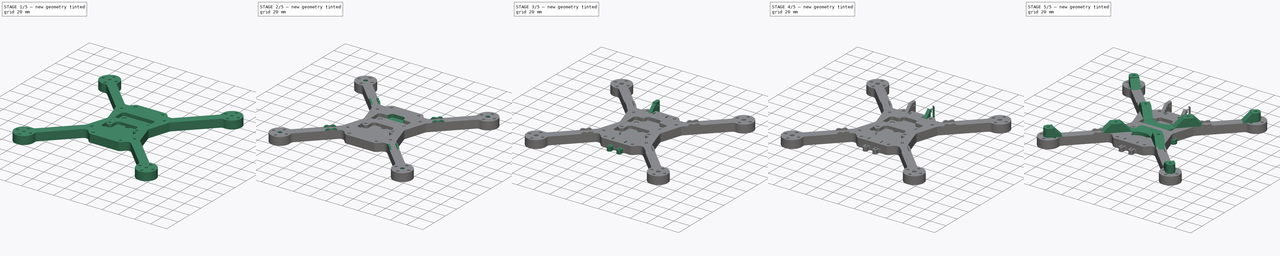
[diagram: build sequence overview — one tinted view per stage of 5, left to right]
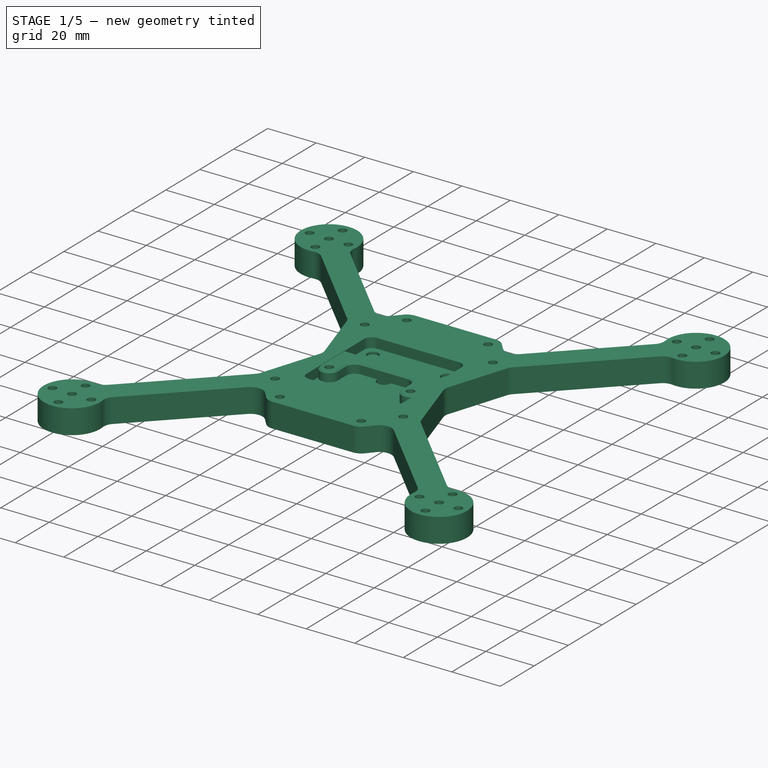
[diagram: stage 1 of 5 — iso view after this stage's code; geometry added in this stage tinted green]
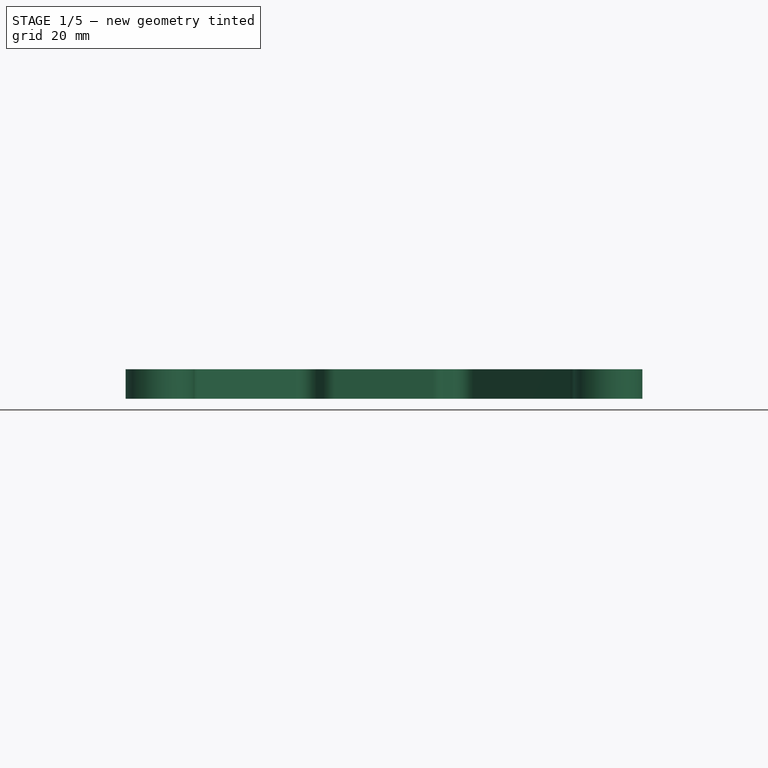
[diagram: stage 1 of 5 — front view after this stage's code; geometry added in this stage tinted green]
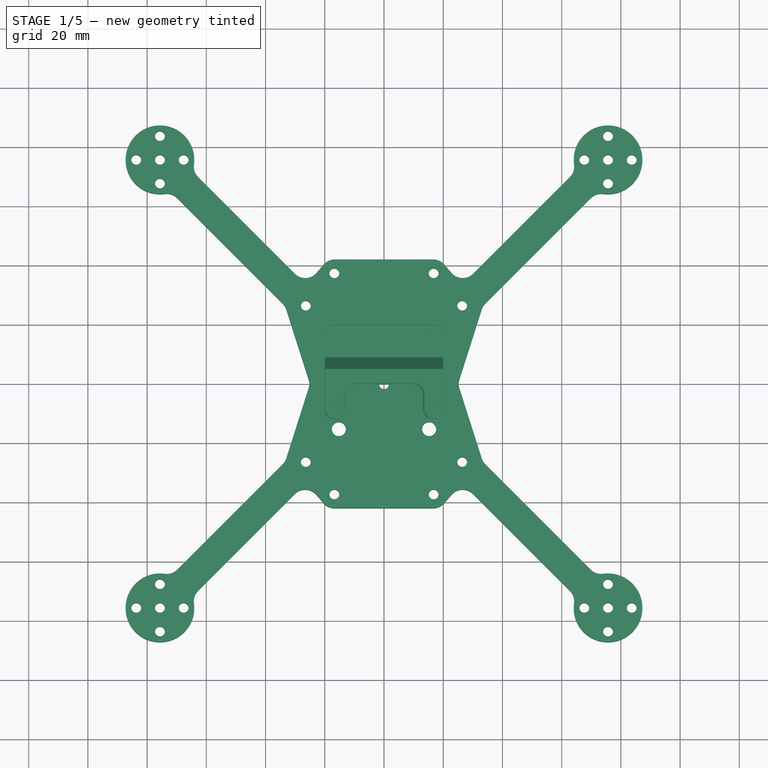
[diagram: stage 1 of 5 — top view after this stage's code; geometry added in this stage tinted green]
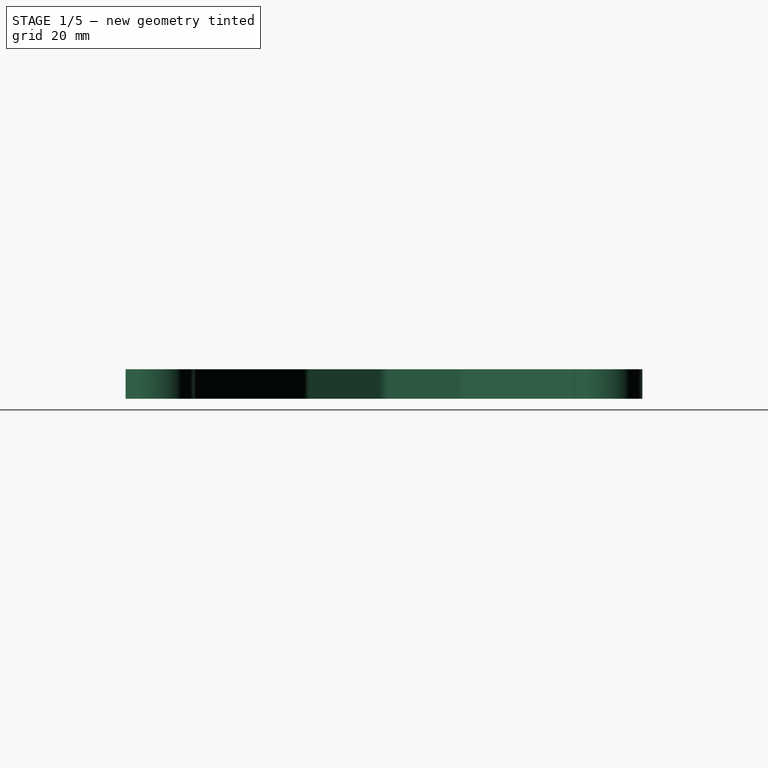
[diagram: stage 1 of 5 — right view after this stage's code; geometry added in this stage tinted green]
FCSTD DOCUMENT  (FreeCAD 1.0R39319 (Git))
Label: five_inch
License: All rights reserved
LicenseURL: http://en.wikipedia.org/wiki/All_rights_reserved
objects: Sketcher::SketchObject×36, PartDesign::Pocket×21, PartDesign::Pad×15, PartDesign::Fillet×15, PartDesign::Mirrored×11, PartDesign::Chamfer×10, PartDesign::Body×5, PartDesign::MultiTransform×4, PartDesign::PolarPattern×3, App::Part×1
note: 296 computed .brp shape members not serialized (recipe doc carries the construction recipe); baked Part::Feature solids carry a one-line shape summary decoded from their .brp

FEATURE [Sketcher::SketchObject] Sketch  label="Base"
  ArcFitTolerance = 0
  AttachmentSupport = -> [XY_Plane001]
  FullyConstrained = true
  MakeInternals = false
  MapMode = 5
  expr: Constraints[107] = .Constraints.ScrewHoleDiameter
  expr: Constraints[117] = .Constraints.ScrewHoleDiameter
  expr: Constraints[98] = .Constraints.ScrewCapDiameter
  sketch-geometry (44):
    g0: LineSegment [constr] StartX=0 StartY=0 StartZ=0 EndX=-75.6604 EndY=75.6604 EndZ=0
    g1: Circle [constr] CenterX=-75.6604 CenterY=75.6604 CenterZ=0 NormalX=0 NormalY=0 NormalZ=1 AngleXU=0 Radius=65
    g2: ArcOfCircle CenterX=-75.6604 CenterY=75.6604 CenterZ=0 NormalX=0 NormalY=0 NormalZ=1 AngleXU=0 Radius=11.6 StartAngle=5.94343 EndAngle=11.3353
    g3: LineSegment [constr] StartX=-71.7946 StartY=64.7235 StartZ=0 EndX=-68.2591 EndY=68.2591 EndZ=0
    g4: LineSegment [constr] StartX=-68.2591 StartY=68.2591 StartZ=0 EndX=-64.7235 EndY=71.7946 EndZ=0
    g5: LineSegment StartX=-71.7946 StartY=64.7235 StartZ=0 EndX=-33.3702 EndY=26.2991 EndZ=0
    g6: LineSegment StartX=-64.7235 StartY=71.7946 StartZ=0 EndX=-26.2991 EndY=33.3702 EndZ=0
    g7: LineSegment StartX=-20 StartY=0 StartZ=0 EndX=-25 EndY=0 EndZ=0
    g8: LineSegment StartX=-26.2991 StartY=33.3702 StartZ=0 EndX=-18.9056 EndY=42 EndZ=0
    g9: Circle [constr] CenterX=-75.6604 CenterY=75.6604 CenterZ=0 NormalX=0 NormalY=0 NormalZ=1 AngleXU=0 Radius=8
    g10: Circle CenterX=-83.6604 CenterY=75.6604 CenterZ=0 NormalX=0 NormalY=0 NormalZ=1 AngleXU=0 Radius=1.65
    g11: Circle CenterX=-75.6604 CenterY=83.6604 CenterZ=0 NormalX=0 NormalY=0 NormalZ=1 AngleXU=0 Radius=1.65
    g12: Circle CenterX=-75.6604 CenterY=67.6604 CenterZ=0 NormalX=0 NormalY=0 NormalZ=1 AngleXU=0 Radius=1.65
    g13: Circle CenterX=-67.6604 CenterY=75.6604 CenterZ=0 NormalX=0 NormalY=0 NormalZ=1 AngleXU=0 Radius=1.65
    g14: LineSegment [constr] StartX=-75.6604 StartY=67.6604 StartZ=0 EndX=-83.6604 EndY=75.6604 EndZ=0
    g15: LineSegment [constr] StartX=-83.6604 StartY=75.6604 StartZ=0 EndX=-75.6604 EndY=83.6604 EndZ=0
    g16: LineSegment [constr] StartX=-75.6604 StartY=83.6604 StartZ=0 EndX=-67.6604 EndY=75.6604 EndZ=0
    g17: LineSegment [constr] StartX=-67.6604 StartY=75.6604 StartZ=0 EndX=-75.6604 EndY=67.6604 EndZ=0
    g18: Circle [constr] CenterX=-75.6604 CenterY=75.6604 CenterZ=0 NormalX=0 NormalY=0 NormalZ=1 AngleXU=0 Radius=2.8
    g19: LineSegment StartX=0 StartY=20 StartZ=0 EndX=0 EndY=42 EndZ=0
    g20: Circle CenterX=-26.4104 CenterY=26.4104 CenterZ=0 NormalX=0 NormalY=0 NormalZ=1 AngleXU=0 Radius=1.65
    g21: GeomPoint [constr] X=-27.5772 Y=27.5772 Z=0
    g22: GeomPoint [constr] X=-29.6985 Y=29.6985 Z=0
    g23: Circle CenterX=-16.7662 CenterY=37.35 CenterZ=0 NormalX=0 NormalY=0 NormalZ=1 AngleXU=0 Radius=1.65
    g24: LineSegment [constr] StartX=-16.7662 StartY=39 StartZ=0 EndX=-16.7662 EndY=42 EndZ=0
    g25: LineSegment [constr] StartX=-20 StartY=0 StartZ=0 EndX=-20 EndY=20 EndZ=0
    g26: LineSegment [constr] StartX=-20 StartY=20 StartZ=0 EndX=0 EndY=20 EndZ=0
    g27: Circle [constr] CenterX=-15.25 CenterY=15.25 CenterZ=0 NormalX=0 NormalY=0 NormalZ=1 AngleXU=0 Radius=2.35
    g28: LineSegment [constr] StartX=-20 StartY=11.4 StartZ=0 EndX=-11.4 EndY=11.4 EndZ=0
    g29: LineSegment [constr] StartX=-11.4 StartY=11.4 StartZ=0 EndX=-11.4 EndY=20 EndZ=0
    g30: LineSegment [constr] StartX=-15.25 StartY=11.4 StartZ=0 EndX=-15.25 EndY=12.9 EndZ=0
    g31: LineSegment [constr] StartX=-12.9 StartY=15.25 StartZ=0 EndX=-11.4 EndY=15.25 EndZ=0
    g32: LineSegment StartX=-25 StartY=0 StartZ=0 EndX=-33.3702 EndY=26.2991 EndZ=0
    g33: ArcOfCircle CenterX=0 CenterY=0 CenterZ=0 NormalX=0 NormalY=0 NormalZ=1 AngleXU=0 Radius=1.65 StartAngle=1.5708 EndAngle=3.14159
    g34: LineSegment StartX=-20 StartY=0 StartZ=0 EndX=-1.65 EndY=2e-16 EndZ=0
    g35: LineSegment StartX=1e-16 StartY=1.65 StartZ=0 EndX=0 EndY=20 EndZ=0
    g36: Circle CenterX=-75.6604 CenterY=75.6604 CenterZ=0 NormalX=0 NormalY=0 NormalZ=1 AngleXU=0 Radius=1.65
    g37: Circle [constr] CenterX=-75.6604 CenterY=83.6604 CenterZ=0 NormalX=0 NormalY=0 NormalZ=1 AngleXU=0 Radius=2.8
    g38: LineSegment [constr] StartX=-75.6604 StartY=85.3104 StartZ=0 EndX=-75.6604 EndY=87.2604 EndZ=0
    g39: GeomPoint [constr] X=-75.6604 Y=86.4604 Z=0
    g40: LineSegment [constr] StartX=-75.6604 StartY=10.6604 StartZ=0 EndX=-75.6604 EndY=0 EndZ=0
    g41: LineSegment StartX=0 StartY=42 StartZ=0 EndX=-18.9056 EndY=42 EndZ=0
    g42: LineSegment [constr] StartX=-18.9056 StartY=42 StartZ=0 EndX=-20.0549 EndY=42 EndZ=0
    g43: LineSegment [constr] StartX=-18.0192 StartY=38.4235 StartZ=0 EndX=-20.2975 EndY=40.3754 EndZ=0
  constraints (132):
    c: Coincident(g0,g-1)
    c: Coincident(g1,g0)
    c: Diameter(g1) = 130  'PropDiameter'
    c: PointOnObject(g19,g-2)
    c: Coincident(g2,g0)
    c: Coincident(g3,g2)
    c: PointOnObject(g3,g0)
    c: Coincident(g4,g3)
    c: Coincident(g4,g2)
    c: Perpendicular(g0,g4)
    c: Perpendicular(g0,g3)
    c: Distance(g2,g2) = 10  'ArmWidth'
    c: Coincident(g5,g2)
    c: Coincident(g6,g2)
    c: Parallel(g5,g0)
    c: Parallel(g0,g6)
    c: PointOnObject(g19,g-2)
    c: PointOnObject(g7,g-1)
    c: PointOnObject(g7,g-1)
    c: DistanceX(g7,g7) = 5
    c: PointOnObject(g6,g1)
    c: Coincident(g8,g6)
    c: Tangent(g8,g1)
    c: Coincident(g9,g0)
    c: Diameter(g9) = 16
    c: PointOnObject(g10,g9)
    c: PointOnObject(g11,g9)
    c: PointOnObject(g12,g9)
    c: PointOnObject(g13,g9)
    c: Coincident(g14,g12)
    c: Coincident(g14,g10)
    c: Coincident(g15,g10)
    c: Coincident(g15,g11)
    c: Coincident(g16,g11)
    c: Coincident(g16,g13)
    c: Coincident(g17,g13)
    c: Coincident(g17,g12)
    c: Perpendicular(g14,g15)
    c: Perpendicular(g16,g15)
    c: Equal(g15,g14)
    c: Perpendicular(g0,g17)
    c: Equal(g10,g12)
    c: Equal(g10,g13)
    c: Equal(g10,g11)
    c: Diameter(g10) = 3.3  'ScrewHoleDiameter'
    c: Coincident(g18,g0)
    c: Diameter(g18) = 5.6  'ScrewCapDiameter'
    c: DistanceX(g7,g0) = 20
    c: DistanceY(g0,g19) = 20  'BoardHoleHalf'
    c: PointOnObject(g20,g0)
    c: PointOnObject(g21,g20)
    c: PointOnObject(g22,g1)
    c: PointOnObject(g22,g0)
    c: PointOnObject(g21,g0)
    c: Distance(g21,g22) = 3
    c: PointOnObject(g24,g23)
    c: Vertical(g24)
    c: Perpendicular(g23,g24)
    c: DistanceY(g24,g24) = 3
    c: Coincident(g25,g7)
    c: Vertical(g25)
    c: Coincident(g26,g25)
    c: Coincident(g26,g19)
    c: Horizontal(g26)
    c: PointOnObject(g28,g25)
    c: Horizontal(g28)
    c: Coincident(g29,g28)
    c: PointOnObject(g29,g26)
    c: Vertical(g29)
    c: Equal(g28,g29)
    c: PointOnObject(g30,g28)
    c: PointOnObject(g30,g27)
    c: PointOnObject(g31,g27)
    c: PointOnObject(g31,g29)
    c: Horizontal(g31)
    c: Vertical(g30)
    c: Perpendicular(g27,g30)
    c: Perpendicular(g27,g31)
    c: Equal(g30,g31)
    c: DistanceX(g31,g31) = 1.5
    c: DistanceX(g27,g0) = 15.25
    c: Coincident(g32,g7)
    c: Coincident(g32,g5)
    c: PointOnObject(g5,g1)
    c: DistanceX(g29,g19) = 11.4  'BoardSquareHalf'
    c: Coincident(g33,g0)
    c: PointOnObject(g33,g-2)
    c: PointOnObject(g33,g-1)
    c: Equal(g33,g12)
    c: Coincident(g34,g7)
    c: Coincident(g34,g33)
    c: Coincident(g35,g33)
    c: Coincident(g35,g19)
    c: Coincident(g36,g0)
    c: Equal(g36,g10)
    c: Angle(g35,g0) = 0.785398  'ArmAngle'
    c: Distance(g0,g0) = 107  'WheelbaseRadius'
    c: Coincident(g37,g11)
    c: Diameter(g37) = 5.6
    c: PointOnObject(g38,g11)
    c: PointOnObject(g38,g2)
    c: Perpendicular(g11,g38)
    c: Perpendicular(g2,g38)
    c: PointOnObject(g39,g37)
    c: PointOnObject(g39,g38)
    c: Distance(g39,g38) = 0.8
    c: DistanceY(g0,g19) = 42  'BodyLengthHalf'
    c: Diameter(g20) = 3.3
    c: Distance(g20,g0) = 37.35  'LegScrewRadius'
    c: PointOnObject(g40,g1)
    c: PointOnObject(g40,g-1)
    c: Vertical(g40)
    c: Perpendicular(g1,g40)
    c: DistanceX(g7,g0) = 25  'BodyWidthWide'
    c: DistanceY(g0,g23) = 37.35  'TopScrewY'
    c: DistanceX(g23,g0) = 16.7662  'TopScrewX'
    c: Diameter(g27) = 4.7  'HeatSetDiameter'
    c: Diameter(g23) = 3.3
    c: Coincident(g41,g19)
    c: Horizontal(g41)
    c: PointOnObject(g24,g41)
    c: Coincident(g8,g41)
    c: Coincident(g42,g8)
    c: PointOnObject(g42,g1)
    c: Horizontal(g42)
    c: PointOnObject(g43,g23)
    c: PointOnObject(g43,g8)
    c: Perpendicular(g8,g43)
    c: Perpendicular(g23,g43)
    c: Equal(g43,g24)
    c: DistanceX(g8,g19) = 18.9056  'BodyWidthNarrow'
    c: DistanceY(g0,g20) = 26.4104  'ArmScrewY'
FEATURE [PartDesign::Mirrored] Mirrored
  MirrorPlane = -> Sketch [V_Axis]
  Suppressed = false
  TransformMode = 0
FEATURE [PartDesign::Mirrored] Mirrored001
  MirrorPlane = -> Sketch [H_Axis]
  Suppressed = false
  TransformMode = 0
FEATURE [PartDesign::Pad] Pad  label="BottomPad"
  Direction = (0,0,1)
  Length = 10
  Length2 = 10
  Profile = -> Sketch
  ReferenceAxis = -> Sketch [N_Axis]
  Suppressed = false
  Type = 0
FEATURE [PartDesign::MultiTransform] MultiTransform
  BaseFeature = -> Pad
  Originals = -> [Pad]
  Suppressed = false
  TransformMode = 0
  Transformations = -> [Mirrored,Mirrored001]
FEATURE [Sketcher::SketchObject] Sketch001
  ArcFitTolerance = 0
  AttachmentOffset = pos=(0,0,10) rot=(0,0,1;0rad)
  AttachmentSupport = -> [XY_Plane001]
  FullyConstrained = true
  MakeInternals = false
  MapMode = 5
  Placement = pos=(0,0,10) rot=(0,0,1;0rad)
  expr: .AttachmentOffset.Base.z = <<BottomPad>>.Length
  expr: Constraints[11] = Sketch.Constraints.BoardHoleHalf * 2
  sketch-geometry (5):
    g0: LineSegment StartX=-20 StartY=-20 StartZ=0 EndX=-20 EndY=20 EndZ=0
    g1: LineSegment StartX=-20 StartY=20 StartZ=0 EndX=20 EndY=20 EndZ=0
    g2: LineSegment StartX=20 StartY=20 StartZ=0 EndX=20 EndY=-20 EndZ=0
    g3: LineSegment StartX=20 StartY=-20 StartZ=0 EndX=-20 EndY=-20 EndZ=0
    g4: GeomPoint [constr] X=-9e-16 Y=3e-16 Z=0
  constraints (12):
    c: Coincident(g0,g1)
    c: Coincident(g1,g2)
    c: Coincident(g2,g3)
    c: Coincident(g3,g0)
    c: Horizontal(g1)
    c: Horizontal(g3)
    c: Vertical(g0)
    c: Vertical(g2)
    c: Symmetric(g1,g0,g4)
    c: Coincident(g4,g-1)
    c: Equal(g0,g1)
    c: DistanceY(g0,g0) = 40
FEATURE [PartDesign::Pocket] Pocket  label="CenterSquare"
  BaseFeature = -> MultiTransform
  Direction = (0,0,-1)
  Length = 4
  Length2 = 5
  Profile = -> Sketch001
  ReferenceAxis = -> Sketch001 [N_Axis]
  Suppressed = false
  Type = 0
FEATURE [Sketcher::SketchObject] Sketch002
  ArcFitTolerance = 0
  AttachmentOffset = pos=(0,0,10) rot=(0,0,1;0rad)
  AttachmentSupport = -> [XY_Plane001]
  FullyConstrained = true
  MakeInternals = false
  MapMode = 5
  Placement = pos=(0,0,10) rot=(0,0,1;0rad)
  expr: .AttachmentOffset.Base.z = <<BottomPad>>.Length
  expr: Constraints[1] = Sketch.Constraints.ScrewCapDiameter
  sketch-geometry (1):
    g0: Circle CenterX=0 CenterY=0 CenterZ=0 NormalX=0 NormalY=0 NormalZ=1 AngleXU=0 Radius=2.8
  constraints (2):
    c: Coincident(g0,g-1)
    c: Diameter(g0) = 5.6
FEATURE [PartDesign::Pocket] Pocket001  label="CenterScrewHole"
  BaseFeature = -> Pocket
  Direction = (0,0,-1)
  Length = 7
  Length2 = 5
  Profile = -> Sketch002
  ReferenceAxis = -> Sketch002 [N_Axis]
  Suppressed = false
  Type = 0
  expr: Length = <<CenterSquare>>.Length + 3 mm
FEATURE [Sketcher::SketchObject] Sketch003
  ArcFitTolerance = 0
  AttachmentSupport = -> [XY_Plane001]
  FullyConstrained = true
  MakeInternals = false
  MapMode = 5
  expr: Constraints[11] = 30.5
  expr: Constraints[19] = <<Base>>.Constraints.HeatSetDiameter
  sketch-geometry (9):
    g0: LineSegment [constr] StartX=-15.25 StartY=-15.25 StartZ=0 EndX=-15.25 EndY=15.25 EndZ=0
    g1: LineSegment [constr] StartX=-15.25 StartY=15.25 StartZ=0 EndX=15.25 EndY=15.25 EndZ=0
    g2: LineSegment [constr] StartX=15.25 StartY=15.25 StartZ=0 EndX=15.25 EndY=-15.25 EndZ=0
    g3: LineSegment [constr] StartX=15.25 StartY=-15.25 StartZ=0 EndX=-15.25 EndY=-15.25 EndZ=0
    g4: GeomPoint [constr] X=-7e-16 Y=1e-16 Z=0
    g5: Circle CenterX=-15.25 CenterY=15.25 CenterZ=0 NormalX=0 NormalY=0 NormalZ=1 AngleXU=0 Radius=2.35
    g6: Circle CenterX=-15.25 CenterY=-15.25 CenterZ=0 NormalX=0 NormalY=0 NormalZ=1 AngleXU=0 Radius=2.35
    g7: Circle CenterX=15.25 CenterY=-15.25 CenterZ=0 NormalX=0 NormalY=0 NormalZ=1 AngleXU=0 Radius=2.35
    g8: Circle CenterX=15.25 CenterY=15.25 CenterZ=0 NormalX=0 NormalY=0 NormalZ=1 AngleXU=0 Radius=2.35
  constraints (20):
    c: Coincident(g0,g1)
    c: Coincident(g1,g2)
    c: Coincident(g2,g3)
    c: Coincident(g3,g0)
    c: Horizontal(g1)
    c: Horizontal(g3)
    c: Vertical(g0)
    c: Vertical(g2)
    c: Symmetric(g1,g0,g4)
    c: Coincident(g4,g-1)
    c: Equal(g0,g1)
    c: DistanceY(g0,g0) = 30.5
    c: Coincident(g5,g0)
    c: Coincident(g6,g0)
    c: Coincident(g7,g2)
    c: Coincident(g8,g1)
    c: Equal(g5,g6)
    c: Equal(g6,g7)
    c: Equal(g7,g8)
    c: Diameter(g8) = 4.7
FEATURE [PartDesign::Pocket] Pocket002  label="BoardScrewHoles"
  BaseFeature = -> Pocket001
  Direction = (0,0,-1)
  Length = 5
  Length2 = 5
  Profile = -> Sketch003
  ReferenceAxis = -> Sketch003 [N_Axis]
  Reversed = true
  Suppressed = false
  Type = 1
FEATURE [PartDesign::Fillet] Fillet  label="ArmJointFillet"
  Base = -> Pocket002 [Edge182,Edge199,Edge148,Edge149,Edge98,Edge147,Edge200,Edge75,Edge202,Edge43,Edge8,Edge185,Edge183,Edge96,Edge97,Edge201,Edge184,Edge129]
  BaseFeature = -> Pocket002
  Radius = 5
  SupportTransform = false
  Suppressed = false
  UseAllEdges = false
FEATURE [PartDesign::Fillet] Fillet001  label="CenterHoleFillet"
  Base = -> Fillet [Edge139,Edge141,Edge232,Edge138]
  BaseFeature = -> Fillet
  Radius = 3
  SupportTransform = false
  Suppressed = false
  UseAllEdges = false
FEATURE [PartDesign::Fillet] Fillet013  label="CornersFillet"
  Base = -> Fillet001 [Edge149,Edge239,Edge198,Edge82]
  BaseFeature = -> Fillet001
  Radius = 5
  SupportTransform = false
  Suppressed = false
  UseAllEdges = false
FEATURE [PartDesign::Body] Body  label="Bottom"
  AllowCompound = false
  Group = -> [Sketch,Pad,MultiTransform,Mirrored,Mirrored001,Sketch001,Pocket,Sketch002,Pocket001,Sketch003,Pocket002,Fillet,Fillet001,Sketch007,Fillet013,Pocket005,Sketch008,Pad002,MultiTransform002,Sketch015,Mirrored005,Mirrored006,Pocket008,PolarPattern,Sketch024,Pad011,Sketch025,Pocket013,Chamfer005,Chamfer006,PolarPattern002,Sketch035,Pocket021,Mirrored012,Sketch036,Pocket022,Fillet024,Mirrored013,+5 more]
  Origin = -> Origin001
  Tip = -> MultiTransform005
FEATURE [Sketcher::SketchObject] Sketch038
  ArcFitTolerance = 1e-06
  AttachmentSupport = -> [XY_Plane005]
  FullyConstrained = true
  MakeInternals = false
  MapMode = 5
  expr: Constraints[20] = <<Base>>.Constraints.ScrewHoleDiameter
  expr: Constraints[21] = <<Base>>.Constraints.TopScrewX
  sketch-geometry (20):
    g0: LineSegment StartX=0 StartY=0 StartZ=0 EndX=-13.1162 EndY=0 EndZ=0
    g1: LineSegment StartX=0 StartY=0 StartZ=0 EndX=13.1162 EndY=0 EndZ=0
    g2: LineSegment StartX=-13.1162 StartY=0 StartZ=0 EndX=-13.1162 EndY=-12 EndZ=0
    g3: LineSegment StartX=-13.1162 StartY=-12 StartZ=0 EndX=-20.4162 EndY=-12 EndZ=0
    g4: LineSegment StartX=-20.4162 StartY=25 StartZ=0 EndX=20.4162 EndY=25 EndZ=0
    g5: LineSegment StartX=20.4162 StartY=-12 StartZ=0 EndX=13.1162 EndY=-12 EndZ=0
    g6: LineSegment StartX=13.1162 StartY=-12 StartZ=0 EndX=13.1162 EndY=0 EndZ=0
    g7: Circle CenterX=-16.7662 CenterY=-8.35 CenterZ=0 NormalX=0 NormalY=0 NormalZ=1 AngleXU=0 Radius=1.65
    g8: LineSegment [constr] StartX=-15.1162 StartY=-8.35 StartZ=0 EndX=-13.1162 EndY=-8.35 EndZ=0
    g9: LineSegment [constr] StartX=-18.4162 StartY=-8.35 StartZ=0 EndX=-20.4162 EndY=-8.35 EndZ=0
    g10: LineSegment [constr] StartX=-16.7662 StartY=-10 StartZ=0 EndX=-16.7662 EndY=-12 EndZ=0
    g11: Circle CenterX=16.7662 CenterY=-8.35 CenterZ=0 NormalX=0 NormalY=0 NormalZ=1 AngleXU=0 Radius=1.65
    g12: LineSegment [constr] StartX=-16.7662 StartY=-8.35 StartZ=0 EndX=0 EndY=-8.35 EndZ=0
    g13: LineSegment [constr] StartX=0 StartY=-8.35 StartZ=0 EndX=16.7662 EndY=-8.35 EndZ=0
    g14: LineSegment StartX=-20.4162 StartY=-12 StartZ=0 EndX=-20.4162 EndY=0 EndZ=0
    g15: LineSegment StartX=-20.4162 StartY=0 StartZ=0 EndX=-20.4162 EndY=25 EndZ=0
    g16: LineSegment [constr] StartX=-20.4162 StartY=0 StartZ=0 EndX=-13.1162 EndY=0 EndZ=0
    g17: LineSegment StartX=20.4162 StartY=25 StartZ=0 EndX=20.4162 EndY=0 EndZ=0
    g18: LineSegment StartX=20.4162 StartY=0 StartZ=0 EndX=20.4162 EndY=-12 EndZ=0
    g19: LineSegment [constr] StartX=13.1162 StartY=0 StartZ=0 EndX=20.4162 EndY=0 EndZ=0
  constraints (59):
    c: Coincident(g0,g-1)
    c: PointOnObject(g0,g-1)
    c: Coincident(g1,g0)
    c: PointOnObject(g1,g-1)
    c: Coincident(g2,g0)
    c: Vertical(g2)
    c: Coincident(g2,g3)
    c: Horizontal(g3)
    c: Coincident(g3,g14)
    c: Coincident(g15,g4)
    c: Horizontal(g4)
    c: Coincident(g4,g17)
    c: Coincident(g18,g5)
    c: Horizontal(g5)
    c: Coincident(g5,g6)
    c: Coincident(g6,g1)
    c: Vertical(g6)
    c: Equal(g0,g1)
    c: Equal(g2,g6)
    c: Equal(g3,g5)
    c: Diameter(g7) = 3.3
    c: DistanceX(g7,g0) = 16.7662
    c: PointOnObject(g8,g7)
    c: PointOnObject(g8,g2)
    c: Horizontal(g8)
    c: PointOnObject(g9,g7)
    c: Horizontal(g9)
    c: PointOnObject(g10,g7)
    c: PointOnObject(g10,g3)
    c: Vertical(g10)
    c: Equal(g9,g10)
    c: Equal(g10,g8)
    c: Perpendicular(g7,g8)
    c: Perpendicular(g7,g10)
    c: Perpendicular(g7,g9)
    c: DistanceX(g8,g8) = 2
    c: Coincident(g12,g7)
    c: PointOnObject(g12,g-2)
    c: Horizontal(g12)
    c: Coincident(g13,g12)
    c: Coincident(g13,g11)
    c: Horizontal(g13)
    c: Equal(g12,g13)
    c: Equal(g7,g11)
    c: DistanceY(g2,g2) = 12
    c: Coincident(g14,g15)
    c: PointOnObject(g9,g14)
    c: Vertical(g14)
    c: Coincident(g16,g14)
    c: Coincident(g16,g0)
    c: Horizontal(g16)
    c: Coincident(g17,g18)
    c: Vertical(g18)
    c: Coincident(g19,g1)
    c: Coincident(g19,g17)
    c: Horizontal(g19)
    c: Equal(g15,g17)
    c: DistanceY(g14,g4) = 25
    c: Vertical(g15)
FEATURE [PartDesign::Pad] Pad014
  Direction = (0,0,1)
  Length = 5
  Length2 = 10
  Profile = -> Sketch038
  ReferenceAxis = -> Sketch038 [N_Axis]
  Suppressed = false
  Type = 0
FEATURE [Sketcher::SketchObject] Sketch039
  ArcFitTolerance = 1e-06
  AttachmentSupport = -> [Pad014]
  ExternalGeometry = -> [Pad014]
  FullyConstrained = true
  MakeInternals = false
  MapMode = 5
  Placement = pos=(0,0,5) rot=(0,0,1;0rad)
  sketch-geometry (11):
    g0: LineSegment StartX=-20.4162 StartY=0 StartZ=0 EndX=-20.4162 EndY=-12 EndZ=0
    g1: LineSegment StartX=-20.4162 StartY=-12 StartZ=0 EndX=-13.1162 EndY=-12 EndZ=0
    g2: LineSegment StartX=-13.1162 StartY=-12 StartZ=0 EndX=-13.1162 EndY=0 EndZ=0
    g3: LineSegment StartX=-13.1162 StartY=0 StartZ=0 EndX=13.1162 EndY=0 EndZ=0
    g4: LineSegment StartX=13.1162 StartY=0 StartZ=0 EndX=13.1162 EndY=-12 EndZ=0
    g5: LineSegment StartX=13.1162 StartY=-12 StartZ=0 EndX=20.4162 EndY=-12 EndZ=0
    g6: LineSegment StartX=20.4162 StartY=-12 StartZ=0 EndX=20.4162 EndY=10 EndZ=0
    g7: LineSegment StartX=20.4162 StartY=10 StartZ=0 EndX=-20.4162 EndY=10 EndZ=0
    g8: LineSegment StartX=-20.4162 StartY=10 StartZ=0 EndX=-20.4162 EndY=0 EndZ=0
    g9: Circle CenterX=-16.7662 CenterY=-8.35 CenterZ=0 NormalX=0 NormalY=0 NormalZ=1 AngleXU=0 Radius=1.65
    g10: Circle CenterX=16.7662 CenterY=-8.35 CenterZ=0 NormalX=0 NormalY=0 NormalZ=1 AngleXU=0 Radius=1.65
  constraints (24):
    c: Coincident(g-3,g0)
    c: Coincident(g0,g-3)
    c: Coincident(g0,g1)
    c: Coincident(g1,g-4)
    c: Coincident(g1,g2)
    c: Coincident(g2,g-4)
    c: Coincident(g2,g3)
    c: Coincident(g3,g-5)
    c: Coincident(g3,g4)
    c: Coincident(g4,g-5)
    c: Coincident(g4,g5)
    c: Coincident(g5,g-6)
    c: Coincident(g5,g6)
    c: Vertical(g6)
    c: Coincident(g6,g7)
    c: Horizontal(g7)
    c: Coincident(g7,g8)
    c: Coincident(g8,g0)
    c: Vertical(g8)
    c: DistanceY(g8,g8) = 10
    c: Coincident(g9,g-7)
    c: Equal(g9,g-7)
    c: Coincident(g10,g-8)
    c: Equal(g10,g-8)
FEATURE [PartDesign::Pad] Pad015
  BaseFeature = -> Pad014
  Direction = (0,0,1)
  Length = 5
  Length2 = 10
  Profile = -> Sketch039
  ReferenceAxis = -> Sketch039 [N_Axis]
  Suppressed = false
  Type = 0
FEATURE [PartDesign::Chamfer] Chamfer007
  Angle = 45
  Base = -> Pad015 [Edge53]
  BaseFeature = -> Pad015
  ChamferType = 0
  FlipDirection = false
  Size = 4.99
  Size2 = 1
  SupportTransform = false
  Suppressed = false
  UseAllEdges = false
FEATURE [PartDesign::Chamfer] Chamfer008
  Angle = 45
  Base = -> Chamfer007 [Edge48,Edge39]
  BaseFeature = -> Chamfer007
  ChamferType = 0
  FlipDirection = false
  Size = 8
  Size2 = 1
  SupportTransform = false
  Suppressed = false
  UseAllEdges = false
FEATURE [PartDesign::Fillet] Fillet025
  Base = -> Chamfer008 [Edge22,Edge36,Edge38,Edge40,Edge46,Edge32,Edge20,Edge35,Edge2,Edge44]
  BaseFeature = -> Chamfer008
  Radius = 3.64
  SupportTransform = false
  Suppressed = false
  UseAllEdges = false
FEATURE [PartDesign::Chamfer] Chamfer009
  Angle = 45
  Base = -> Fillet025 [Edge21,Edge20,Edge95,Edge39]
  BaseFeature = -> Fillet025
  ChamferType = 0
  FlipDirection = false
  Size = 0.6
  Size2 = 1
  SupportTransform = false
  Suppressed = false
  UseAllEdges = false
FEATURE [PartDesign::Body] Body004  label="GPSPlate"
  AllowCompound = false
  Group = -> [Sketch038,Pad014,Sketch039,Pad015,Chamfer007,Chamfer008,Fillet025,Chamfer009]
  Origin = -> Origin005
  Placement = pos=(2.68e-14,-45.8,50.2) rot=(1,0,0;3.14159rad)
  Tip = -> Chamfer009
FEATURE [App::Part] Part
  Group = -> [Body,Body001,Body002,Body003,Body004]
  Origin = -> Origin
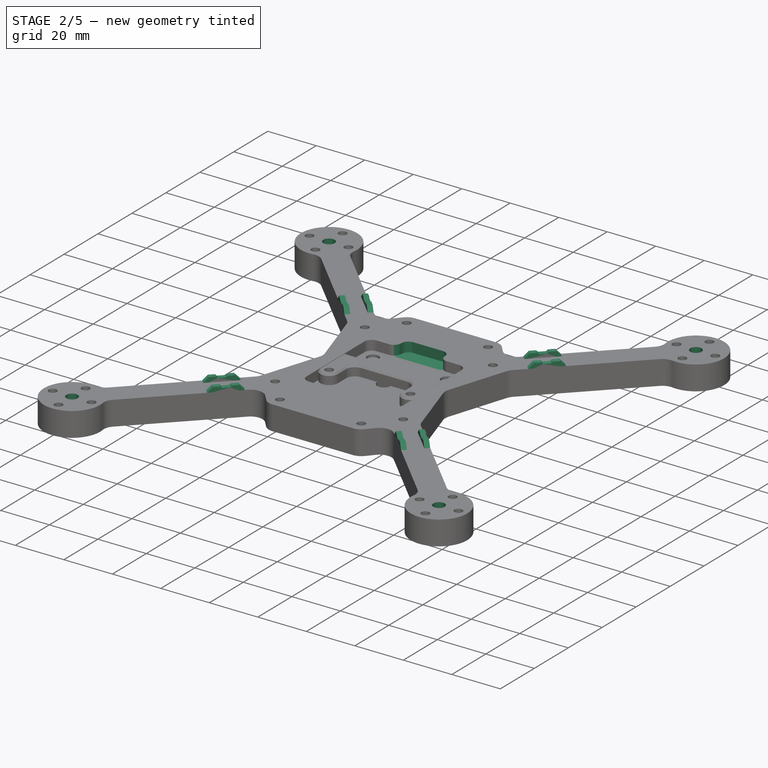
[diagram: stage 2 of 5 — iso view after this stage's code; geometry added in this stage tinted green]
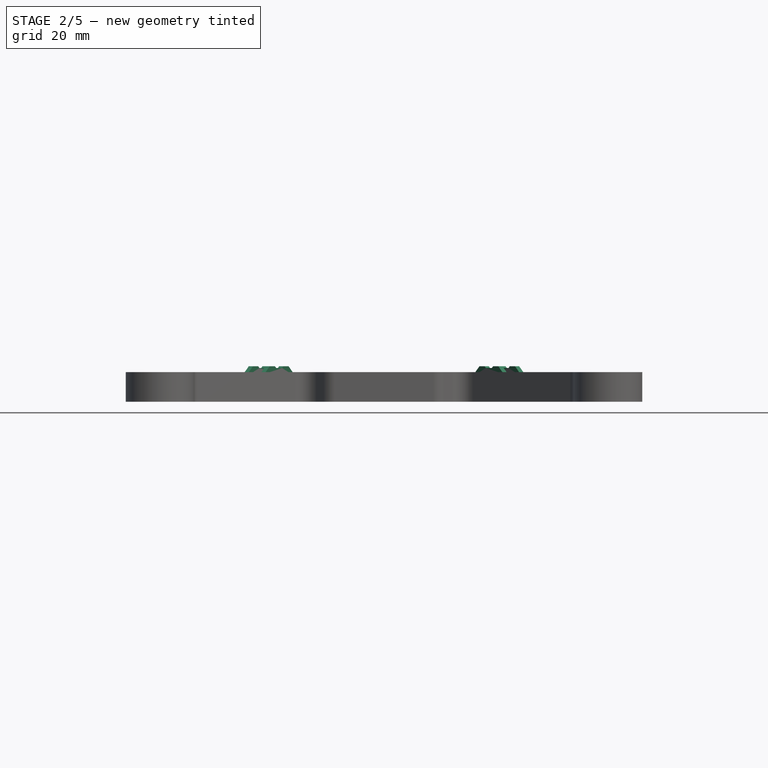
[diagram: stage 2 of 5 — front view after this stage's code; geometry added in this stage tinted green]
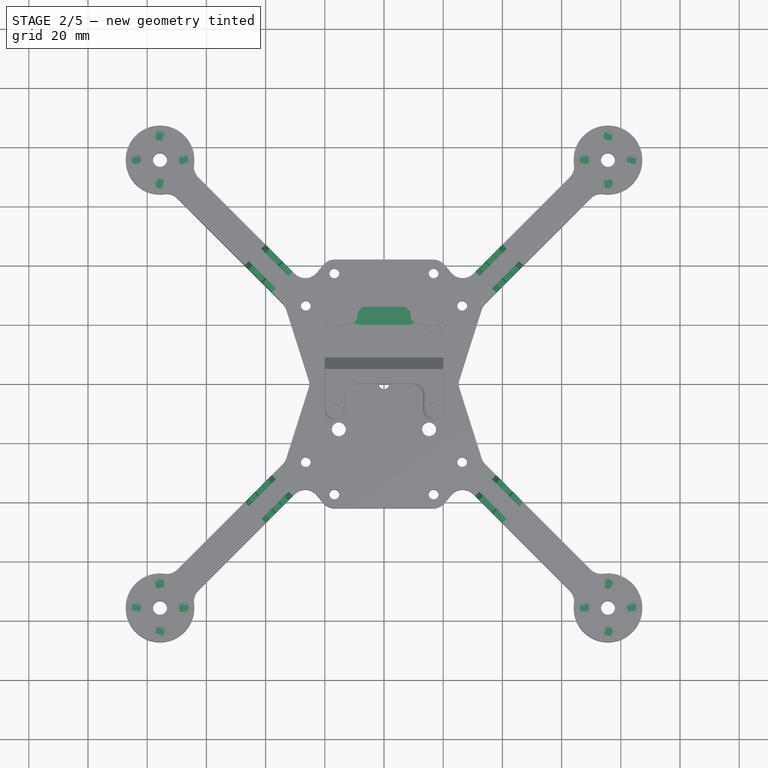
[diagram: stage 2 of 5 — top view after this stage's code; geometry added in this stage tinted green]
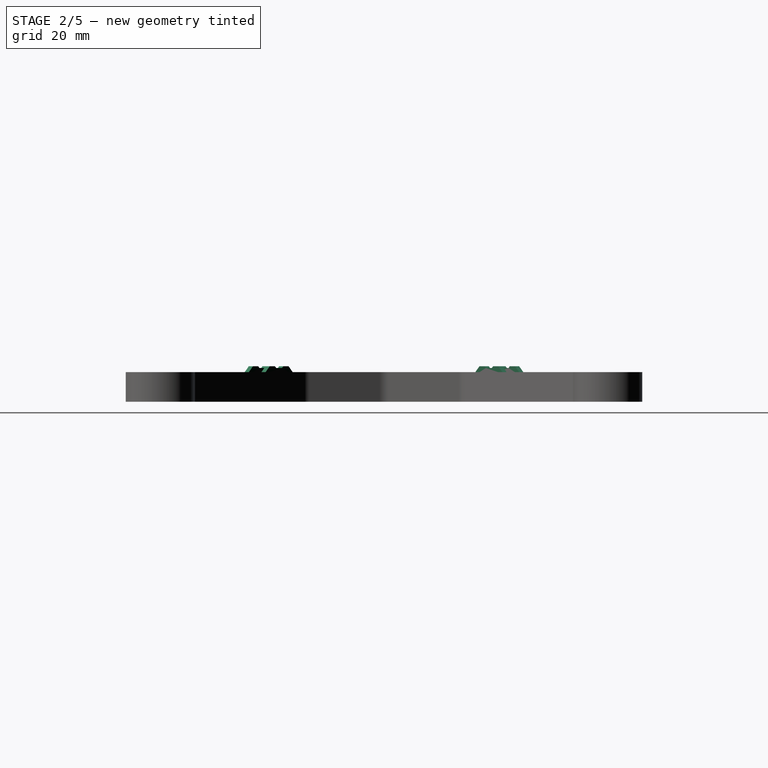
[diagram: stage 2 of 5 — right view after this stage's code; geometry added in this stage tinted green]
FEATURE [Sketcher::SketchObject] Sketch007
  ArcFitTolerance = 0
  AttachmentSupport = -> [XY_Plane001]
  FullyConstrained = true
  MakeInternals = false
  MapMode = 5
  expr: Constraints[1] = Sketch.Constraints.ArmAngle
  expr: Constraints[24] = Sketch.Constraints.ScrewCapDiameter
  expr: Constraints[2] = Sketch.Constraints.WheelbaseRadius
  sketch-geometry (10):
    g0: LineSegment [constr] StartX=0 StartY=0 StartZ=0 EndX=-75.6604 EndY=75.6604 EndZ=0
    g1: Circle [constr] CenterX=-75.6604 CenterY=75.6604 CenterZ=0 NormalX=0 NormalY=0 NormalZ=1 AngleXU=0 Radius=8
    g2: Circle CenterX=-75.6604 CenterY=83.6604 CenterZ=0 NormalX=0 NormalY=0 NormalZ=1 AngleXU=0 Radius=2.8
    g3: Circle CenterX=-83.6604 CenterY=75.6604 CenterZ=0 NormalX=0 NormalY=0 NormalZ=1 AngleXU=0 Radius=2.8
    g4: Circle CenterX=-75.6604 CenterY=67.6604 CenterZ=0 NormalX=0 NormalY=0 NormalZ=1 AngleXU=0 Radius=2.8
    g5: Circle CenterX=-67.6604 CenterY=75.6604 CenterZ=0 NormalX=0 NormalY=0 NormalZ=1 AngleXU=0 Radius=2.8
    g6: LineSegment [constr] StartX=-83.6604 StartY=75.6604 StartZ=0 EndX=-75.6604 EndY=83.6604 EndZ=0
    g7: LineSegment [constr] StartX=-75.6604 StartY=83.6604 StartZ=0 EndX=-67.6604 EndY=75.6604 EndZ=0
    g8: LineSegment [constr] StartX=-67.6604 StartY=75.6604 StartZ=0 EndX=-75.6604 EndY=67.6604 EndZ=0
    g9: LineSegment [constr] StartX=-75.6604 StartY=67.6604 StartZ=0 EndX=-83.6604 EndY=75.6604 EndZ=0
  constraints (25):
    c: Coincident(g0,g-1)
    c: Angle(g-2,g0) = 0.785398
    c: Distance(g0) = 107
    c: Coincident(g1,g0)
    c: Diameter(g1) = 16
    c: PointOnObject(g2,g1)
    c: PointOnObject(g3,g1)
    c: PointOnObject(g4,g1)
    c: PointOnObject(g5,g1)
    c: Coincident(g6,g3)
    c: Coincident(g6,g2)
    c: Coincident(g7,g2)
    c: Coincident(g7,g5)
    c: Coincident(g8,g5)
    c: Coincident(g8,g4)
    c: Coincident(g9,g4)
    c: Coincident(g9,g3)
    c: Equal(g6,g9)
    c: Equal(g9,g7)
    c: Equal(g7,g8)
    c: Perpendicular(g0,g8)
    c: Equal(g2,g3)
    c: Equal(g2,g4)
    c: Equal(g2,g5)
    c: Diameter(g2) = 5.6
FEATURE [PartDesign::Mirrored] Mirrored005
  MirrorPlane = -> Sketch007 [V_Axis]
  Suppressed = false
  TransformMode = 0
FEATURE [PartDesign::Mirrored] Mirrored006
  MirrorPlane = -> Sketch007 [H_Axis]
  Suppressed = false
  TransformMode = 0
FEATURE [PartDesign::Pocket] Pocket005  label="MotorScrewHoles"
  BaseFeature = -> Fillet013
  Direction = (0,0,-1)
  Length = 5
  Length2 = 5
  Profile = -> Sketch007
  ReferenceAxis = -> Sketch007 [N_Axis]
  Reversed = true
  Suppressed = false
  TaperAngle = 1
  Type = 0
FEATURE [Sketcher::SketchObject] Sketch008
  ArcFitTolerance = 0
  AttachmentOffset = pos=(0,0,5) rot=(0,0,1;0rad)
  AttachmentSupport = -> [XY_Plane001]
  FullyConstrained = true
  MakeInternals = false
  MapMode = 5
  Placement = pos=(0,0,5) rot=(0,0,1;0rad)
  expr: Constraints[1] = Sketch.Constraints.ArmAngle
  expr: Constraints[24] = Sketch007.Constraints[24]
  expr: Constraints[2] = Sketch.Constraints.WheelbaseRadius
  expr: Constraints[4] = Sketch007.Constraints[4]
  sketch-geometry (10):
    g0: LineSegment [constr] StartX=0 StartY=0 StartZ=0 EndX=-75.6604 EndY=75.6604 EndZ=0
    g1: Circle [constr] CenterX=-75.6604 CenterY=75.6604 CenterZ=0 NormalX=0 NormalY=0 NormalZ=1 AngleXU=0 Radius=8
    g2: Circle CenterX=-75.6604 CenterY=83.6604 CenterZ=0 NormalX=0 NormalY=0 NormalZ=1 AngleXU=0 Radius=2.8
    g3: Circle CenterX=-83.6604 CenterY=75.6604 CenterZ=0 NormalX=0 NormalY=0 NormalZ=1 AngleXU=0 Radius=2.8
    g4: Circle CenterX=-75.6604 CenterY=67.6604 CenterZ=0 NormalX=0 NormalY=0 NormalZ=1 AngleXU=0 Radius=2.8
    g5: Circle CenterX=-67.6604 CenterY=75.6604 CenterZ=0 NormalX=0 NormalY=0 NormalZ=1 AngleXU=0 Radius=2.8
    g6: LineSegment [constr] StartX=-83.6604 StartY=75.6604 StartZ=0 EndX=-75.6604 EndY=83.6604 EndZ=0
    g7: LineSegment [constr] StartX=-75.6604 StartY=83.6604 StartZ=0 EndX=-67.6604 EndY=75.6604 EndZ=0
    g8: LineSegment [constr] StartX=-67.6604 StartY=75.6604 StartZ=0 EndX=-75.6604 EndY=67.6604 EndZ=0
    g9: LineSegment [constr] StartX=-75.6604 StartY=67.6604 StartZ=0 EndX=-83.6604 EndY=75.6604 EndZ=0
  constraints (25):
    c: Coincident(g0,g-1)
    c: Angle(g-2,g0) = 0.785398
    c: Distance(g0) = 107
    c: Coincident(g1,g0)
    c: Diameter(g1) = 16
    c: PointOnObject(g2,g1)
    c: PointOnObject(g3,g1)
    c: PointOnObject(g4,g1)
    c: PointOnObject(g5,g1)
    c: Coincident(g6,g3)
    c: Coincident(g6,g2)
    c: Coincident(g7,g2)
    c: Coincident(g7,g5)
    c: Coincident(g8,g5)
    c: Coincident(g8,g4)
    c: Coincident(g9,g4)
    c: Coincident(g9,g3)
    c: Equal(g6,g9)
    c: Equal(g9,g7)
    c: Equal(g7,g8)
    c: Perpendicular(g0,g8)
    c: Equal(g2,g3)
    c: Equal(g2,g4)
    c: Equal(g2,g5)
    c: Diameter(g2) = 5.6
FEATURE [PartDesign::Pad] Pad002  label="MotorScrewHolesSacrificials"
  BaseFeature = -> Pocket005
  Direction = (0,0,1)
  Length = 0.2
  Length2 = 10
  Profile = -> Sketch008
  ReferenceAxis = -> Sketch008 [N_Axis]
  Suppressed = false
  Type = 0
FEATURE [PartDesign::MultiTransform] MultiTransform002  label="MotorScrewHolesx4"
  BaseFeature = -> Pad002
  Originals = -> [Pocket005,Pad002]
  Suppressed = false
  TransformMode = 0
  Transformations = -> [Mirrored005,Mirrored006]
FEATURE [Sketcher::SketchObject] Sketch013
  ArcFitTolerance = 0
  AttachmentSupport = -> [XY_Plane002]
  FullyConstrained = true
  MakeInternals = false
  MapMode = 5
  expr: Constraints[1] = <<Base>>.Constraints.ArmAngle
  expr: Constraints[2] = <<Base>>.Constraints.LegScrewRadius
  expr: Constraints[4] = <<Base>>.Constraints.ScrewCapDiameter
  expr: Constraints[7] = <<Base>>.Constraints.WheelbaseRadius
  sketch-geometry (4):
    g0: LineSegment [constr] StartX=0 StartY=0 StartZ=0 EndX=-26.4104 EndY=26.4104 EndZ=0
    g1: Circle CenterX=-26.4104 CenterY=26.4104 CenterZ=0 NormalX=0 NormalY=0 NormalZ=1 AngleXU=0 Radius=2.8
    g2: LineSegment [constr] StartX=-26.4104 StartY=26.4104 StartZ=0 EndX=-75.6604 EndY=75.6604 EndZ=0
    g3: Circle CenterX=-75.6604 CenterY=75.6604 CenterZ=0 NormalX=0 NormalY=0 NormalZ=1 AngleXU=0 Radius=2.8
  constraints (10):
    c: Coincident(g0,g-1)
    c: Angle(g-2,g0) = 0.785398
    c: Distance(g0) = 37.35
    c: Coincident(g1,g0)
    c: Diameter(g1) = 5.6
    c: Coincident(g2,g0)
    c: Parallel(g2,g0)
    c: Distance(g2,g0) = 107
    c: Coincident(g3,g2)
    c: Equal(g3,g1)
FEATURE [Sketcher::SketchObject] Sketch014
  ArcFitTolerance = 0
  AttachmentOffset = pos=(0,0,3) rot=(0,0,1;0rad)
  AttachmentSupport = -> [XY_Plane002]
  FullyConstrained = true
  MakeInternals = false
  MapMode = 5
  Placement = pos=(0,0,3) rot=(0,0,1;0rad)
  expr: .AttachmentOffset.Base.z = <<BottomScrewCap>>.Length
  expr: Constraints[1] = <<Base>>.Constraints.ArmAngle
  expr: Constraints[2] = <<Base>>.Constraints.LegScrewRadius
  expr: Constraints[4] = <<Base>>.Constraints.ArmWidth - 0.1 mm
  expr: Constraints[7] = <<Base>>.Constraints.WheelbaseRadius
  sketch-geometry (4):
    g0: LineSegment [constr] StartX=0 StartY=0 StartZ=0 EndX=-26.4104 EndY=26.4104 EndZ=0
    g1: Circle CenterX=-26.4104 CenterY=26.4104 CenterZ=0 NormalX=0 NormalY=0 NormalZ=1 AngleXU=0 Radius=4.95
    g2: LineSegment [constr] StartX=-26.4104 StartY=26.4104 StartZ=0 EndX=-75.6604 EndY=75.6604 EndZ=0
    g3: Circle CenterX=-75.6604 CenterY=75.6604 CenterZ=0 NormalX=0 NormalY=0 NormalZ=1 AngleXU=0 Radius=4.95
  constraints (10):
    c: Coincident(g0,g-1)
    c: Angle(g-2,g0) = 0.785398
    c: Distance(g0) = 37.35
    c: Coincident(g1,g0)
    c: Diameter(g1) = 9.9
    c: Coincident(g2,g0)
    c: Parallel(g2,g0)
    c: Distance(g2,g0) = 107
    c: Coincident(g3,g2)
    c: Equal(g3,g1)
FEATURE [Sketcher::SketchObject] Sketch015
  ArcFitTolerance = 1e-06
  AttachmentSupport = -> [XY_Plane001]
  FullyConstrained = true
  MakeInternals = false
  MapMode = 5
  expr: Constraints[1] = <<Base>>.Constraints.ArmAngle
  expr: Constraints[2] = <<Base>>.Constraints.WheelbaseRadius
  expr: Constraints[4] = <<Base>>.Constraints.HeatSetDiameter
  sketch-geometry (2):
    g0: LineSegment [constr] StartX=0 StartY=0 StartZ=0 EndX=-75.6604 EndY=75.6604 EndZ=0
    g1: Circle CenterX=-75.6604 CenterY=75.6604 CenterZ=0 NormalX=0 NormalY=0 NormalZ=1 AngleXU=0 Radius=2.35
  constraints (5):
    c: Coincident(g0,g-1)
    c: Angle(g-2,g0) = 0.785398
    c: Distance(g0,g0) = 107
    c: Coincident(g1,g0)
    c: Diameter(g1) = 4.7
FEATURE [PartDesign::Pocket] Pocket008  label="BottomHeatSet"
  BaseFeature = -> MultiTransform002
  Direction = (0,0,-1)
  Length = 5
  Length2 = 5
  Profile = -> Sketch015
  ReferenceAxis = -> Sketch015 [N_Axis]
  Reversed = true
  Suppressed = false
  Type = 1
FEATURE [PartDesign::PolarPattern] PolarPattern  label="BottomHeatSets"
  Angle = 360
  Axis = -> Sketch015 [N_Axis]
  BaseFeature = -> Pocket008
  Mode = 0
  Occurrences = 4
  Offset = 120
  Originals = -> [Pocket008]
  Suppressed = false
  TransformMode = 0
FEATURE [PartDesign::Body] Body003  label="TiePoint"
  AllowCompound = false
  Group = -> [Sketch022,Pad010,Sketch023,Pocket012,Fillet022]
  Origin = -> Origin004
  Placement = pos=(-26.5,5.9e-15,40) rot=(0,0,1;1.5708rad)
  Tip = -> Fillet022
FEATURE [Sketcher::SketchObject] Sketch024
  ArcFitTolerance = 1e-06
  AttachmentSupport = -> [PolarPattern]
  ExternalGeometry = -> [PolarPattern]
  FullyConstrained = true
  MakeInternals = false
  MapMode = 5
  Placement = pos=(0,0,10) rot=(0,0,1;0rad)
  expr: Constraints[0] = <<Base>>.Constraints.ArmAngle + 90 deg
  expr: Constraints[21] = <<Base>>.Constraints.ArmWidth
  expr: Constraints[27] = <<Base>>.Constraints.ArmAngle + 90 deg
  sketch-geometry (11):
    g0: LineSegment StartX=-32.2393 StartY=39.3103 StartZ=0 EndX=-38.6032 EndY=45.6743 EndZ=0
    g1: LineSegment StartX=-38.6032 StartY=45.6743 StartZ=0 EndX=-40.0174 EndY=44.2601 EndZ=0
    g2: LineSegment StartX=-40.0174 StartY=44.2601 StartZ=0 EndX=-33.6535 EndY=37.8961 EndZ=0
    g3: LineSegment StartX=-33.6535 StartY=37.8961 StartZ=0 EndX=-32.2393 EndY=39.3103 EndZ=0
    g4: LineSegment StartX=-45.6743 StartY=38.6032 StartZ=0 EndX=-44.2601 EndY=40.0174 EndZ=0
    g5: LineSegment StartX=-44.2601 StartY=40.0174 StartZ=0 EndX=-37.8961 EndY=33.6535 EndZ=0
    g6: LineSegment StartX=-37.8961 StartY=33.6535 StartZ=0 EndX=-39.3103 EndY=32.2393 EndZ=0
    g7: LineSegment StartX=-39.3103 StartY=32.2393 StartZ=0 EndX=-45.6743 EndY=38.6032 EndZ=0
    g8: LineSegment [constr] StartX=-37.8961 StartY=33.6535 StartZ=0 EndX=-33.6535 EndY=37.8961 EndZ=0
    g9: LineSegment [constr] StartX=-40.0174 StartY=44.2601 StartZ=0 EndX=-44.2601 EndY=40.0174 EndZ=0
    g10: LineSegment [constr] StartX=-30.1179 StartY=37.189 StartZ=0 EndX=-32.2393 EndY=39.3103 EndZ=0
  constraints (30):
    c: Angle(g0,g-2) = 2.35619
    c: Coincident(g1,g0)
    c: Coincident(g2,g1)
    c: Coincident(g3,g2)
    c: Coincident(g5,g4)
    c: Coincident(g6,g5)
    c: Coincident(g7,g6)
    c: Coincident(g7,g4)
    c: Perpendicular(g0,g1)
    c: Perpendicular(g0,g3)
    c: Perpendicular(g3,g2)
    c: Coincident(g8,g5)
    c: Coincident(g8,g2)
    c: Coincident(g9,g1)
    c: Coincident(g9,g4)
    c: Perpendicular(g2,g9)
    c: Perpendicular(g2,g8)
    c: Perpendicular(g8,g5)
    c: Perpendicular(g5,g6)
    c: Perpendicular(g6,g7)
    c: Perpendicular(g5,g4)
    c: Distance(g6,g0) = 10
    c: Equal(g4,g1)
    c: Distance(g7) = 9
    c: Coincident(g0,g3)
    c: Coincident(g10,g-3)
    c: Coincident(g10,g0)
    c: Angle(g10,g-2) = 2.35619
    c: Distance(g0,g10) = 3
    c: Distance(g1) = 2
FEATURE [PartDesign::Pad] Pad011  label="ZipTiePad"
  BaseFeature = -> PolarPattern
  Direction = (0,0,1)
  Length = 2
  Length2 = 10
  Profile = -> Sketch024
  ReferenceAxis = -> Sketch024 [N_Axis]
  Suppressed = false
  Type = 0
FEATURE [Sketcher::SketchObject] Sketch025
  ArcFitTolerance = 1e-06
  AttachmentSupport = -> [Pad011]
  ExternalGeometry = -> [Pad011]
  FullyConstrained = true
  MakeInternals = false
  MapMode = 5
  Placement = pos=(0,0,12) rot=(0,0,1;0rad)
  sketch-geometry (12):
    g0: LineSegment StartX=-38.2497 StartY=42.4923 StartZ=0 EndX=-36.1284 EndY=44.6136 EndZ=0
    g1: LineSegment StartX=-36.1284 StartY=44.6136 StartZ=0 EndX=-33.2999 EndY=41.7852 EndZ=0
    g2: LineSegment StartX=-33.2999 StartY=41.7852 StartZ=0 EndX=-35.4212 EndY=39.6639 EndZ=0
    g3: LineSegment StartX=-35.4212 StartY=39.6639 StartZ=0 EndX=-38.2497 EndY=42.4923 EndZ=0
    g4: LineSegment [constr] StartX=-40.0174 StartY=44.2601 StartZ=0 EndX=-38.2497 EndY=42.4923 EndZ=0
    g5: LineSegment [constr] StartX=-35.4212 StartY=39.6639 StartZ=0 EndX=-33.6535 EndY=37.8961 EndZ=0
    g6: LineSegment StartX=-44.6136 StartY=36.1284 StartZ=0 EndX=-42.4923 EndY=38.2497 EndZ=0
    g7: LineSegment StartX=-42.4923 StartY=38.2497 StartZ=0 EndX=-39.6639 EndY=35.4212 EndZ=0
    g8: LineSegment StartX=-39.6639 StartY=35.4212 StartZ=0 EndX=-41.7852 EndY=33.2999 EndZ=0
    g9: LineSegment StartX=-41.7852 StartY=33.2999 StartZ=0 EndX=-44.6136 EndY=36.1284 EndZ=0
    g10: LineSegment [constr] StartX=-42.4923 StartY=38.2497 StartZ=0 EndX=-44.2601 EndY=40.0174 EndZ=0
    g11: LineSegment [constr] StartX=-39.6639 StartY=35.4212 StartZ=0 EndX=-37.8961 EndY=33.6535 EndZ=0
  constraints (32):
    c: Coincident(g1,g0)
    c: Coincident(g2,g1)
    c: Coincident(g3,g2)
    c: Coincident(g3,g0)
    c: Coincident(g4,g-3)
    c: Coincident(g4,g0)
    c: Coincident(g5,g2)
    c: Coincident(g5,g-4)
    c: Equal(g5,g4)
    c: Parallel(g4,g3)
    c: Parallel(g3,g5)
    c: Perpendicular(g3,g0)
    c: Perpendicular(g3,g2)
    c: Perpendicular(g2,g1)
    c: Distance(g0) = 3
    c: Distance(g5) = 2.5
    c: Coincident(g7,g6)
    c: Coincident(g8,g7)
    c: Coincident(g9,g8)
    c: Coincident(g9,g6)
    c: Perpendicular(g9,g6)
    c: Perpendicular(g9,g8)
    c: Perpendicular(g7,g6)
    c: Coincident(g10,g6)
    c: Coincident(g10,g-5)
    c: Coincident(g11,g7)
    c: Coincident(g11,g-6)
    c: Equal(g11,g10)
    c: Equal(g10,g4)
    c: Parallel(g10,g11)
    c: Parallel(g11,g7)
    c: Equal(g6,g0)
FEATURE [PartDesign::Pocket] Pocket013  label="ZipTieCutout"
  BaseFeature = -> Pad011
  Direction = (0,0,-1)
  Length = 0.6
  Length2 = 5
  Profile = -> Sketch025
  ReferenceAxis = -> Sketch025 [N_Axis]
  Suppressed = false
  Type = 0
FEATURE [PartDesign::Chamfer] Chamfer005  label="ZipTieChamferOuter"
  Angle = 45
  Base = -> Pocket013 [Edge11,Edge21,Edge13,Edge19]
  BaseFeature = -> Pocket013
  ChamferType = 0
  FlipDirection = false
  Size = 1.99
  Size2 = 1
  SupportTransform = false
  Suppressed = false
  UseAllEdges = false
  expr: Size = <<ZipTiePad>>.Length - 0.01 mm
FEATURE [PartDesign::Chamfer] Chamfer006  label="ZipTieChamerInner"
  Angle = 45
  Base = -> Chamfer005 [Edge182,Edge315,Edge181,Edge314]
  BaseFeature = -> Chamfer005
  ChamferType = 0
  FlipDirection = false
  Size = 0.59
  Size2 = 1
  SupportTransform = false
  Suppressed = false
  UseAllEdges = false
  expr: Size = <<ZipTieCutout>>.Length - 0.01 mm
FEATURE [PartDesign::PolarPattern] PolarPattern002  label="ZipTieCutoutToAll$Arms"
  Angle = 360
  Axis = -> Sketch024 [N_Axis]
  BaseFeature = -> Chamfer006
  Mode = 0
  Occurrences = 4
  Offset = 120
  Originals = -> [Pad011,Pocket013,Chamfer005,Chamfer006]
  Suppressed = false
  TransformMode = 0
FEATURE [PartDesign::Body] Body002  label="Top"
  AllowCompound = false
  Group = -> [Sketch012,Pad005,MultiTransform004,Mirrored009,Mirrored010,Fillet016,Fillet017,Fillet019,Sketch016,Pad007,Fillet020,Sketch017,Pad008,Sketch018,Pad009,Sketch019,Pocket009,Sketch020,Pocket010,Chamfer002,Mirrored011,Fillet021,Chamfer003,Sketch021,Pocket011,Chamfer004,Sketch027,Pocket015,Sketch028,Pocket016,Fillet023,Sketch029,Pad012,Sketch030,Pocket017,Sketch031,Pad013,Sketch032,Pocket018,Sketch033,+3 more]
  Origin = -> Origin003
  Placement = pos=(-1.8e-15,0,40) rot=(0,1,0;3.14159rad)
  Tip = -> Pocket020
FEATURE [Sketcher::SketchObject] Sketch035
  ArcFitTolerance = 1e-06
  AttachmentSupport = -> [PolarPattern002]
  ExternalGeometry = -> [PolarPattern002]
  FullyConstrained = true
  MakeInternals = false
  MapMode = 5
  Placement = pos=(0,0,6) rot=(0,0,1;0rad)
  sketch-geometry (12):
    g0: LineSegment StartX=-20 StartY=2.26 StartZ=0 EndX=-20 EndY=-2.26 EndZ=0
    g1: LineSegment StartX=-19.26 StartY=-3 StartZ=0 EndX=-19.24 EndY=-3 EndZ=0
    g2: LineSegment StartX=-18.5 StartY=-2.26 StartZ=0 EndX=-18.5 EndY=2.26 EndZ=0
    g3: LineSegment StartX=-19.24 StartY=3 StartZ=0 EndX=-19.26 EndY=3 EndZ=0
    g4: ArcOfCircle CenterX=-19.26 CenterY=2.26 CenterZ=0 NormalX=0 NormalY=0 NormalZ=1 AngleXU=0 Radius=0.74 StartAngle=1.5708 EndAngle=3.14159
    g5: ArcOfCircle CenterX=-19.26 CenterY=-2.26 CenterZ=0 NormalX=0 NormalY=0 NormalZ=1 AngleXU=0 Radius=0.74 StartAngle=3.14159 EndAngle=4.71239
    g6: ArcOfCircle CenterX=-19.24 CenterY=-2.26 CenterZ=0 NormalX=0 NormalY=0 NormalZ=1 AngleXU=0 Radius=0.74 StartAngle=4.71239 EndAngle=6.28319
    g7: ArcOfCircle CenterX=-19.24 CenterY=2.26 CenterZ=0 NormalX=0 NormalY=0 NormalZ=1 AngleXU=0 Radius=0.74 StartAngle=2e-16 EndAngle=1.5708
    g8: GeomPoint [constr] X=-20 Y=3 Z=0
    g9: GeomPoint [constr] X=-18.5 Y=-3 Z=0
    g10: LineSegment [constr] StartX=-20 StartY=0 StartZ=0 EndX=-18.5 EndY=2.26 EndZ=0
    g11: LineSegment [constr] StartX=-20 StartY=0 StartZ=0 EndX=-18.5 EndY=-2.26 EndZ=0
  constraints (28):
    c: Tangent(g0,g4) = -1.5708
    c: Tangent(g0,g5) = -1.5708
    c: Tangent(g1,g5) = -1.5708
    c: Tangent(g1,g6) = -1.5708
    c: Tangent(g2,g6) = -1.5708
    c: Tangent(g2,g7) = -1.5708
    c: Tangent(g3,g7) = -1.5708
    c: Tangent(g3,g4) = -1.5708
    c: Vertical(g0)
    c: Vertical(g2)
    c: Horizontal(g1)
    c: Horizontal(g3)
    c: Equal(g4,g5)
    c: Equal(g5,g6)
    c: Equal(g6,g7)
    c: PointOnObject(g8,g0)
    c: PointOnObject(g8,g3)
    c: PointOnObject(g9,g1)
    c: PointOnObject(g9,g2)
    c: DistanceX(g0,g2) = 1.5
    c: Radius(g4) = 0.74
    c: DistanceY(g1,g3) = 6
    c: PointOnObject(g0,g-3)
    c: Coincident(g10,g-3)
    c: Coincident(g10,g2)
    c: Coincident(g11,g10)
    c: Coincident(g11,g2)
    c: Equal(g11,g10)
FEATURE [PartDesign::Pocket] Pocket021  label="GPSCableHole"
  BaseFeature = -> PolarPattern002
  Direction = (0,0,-1)
  Length = 5
  Length2 = 5
  Profile = -> Sketch035
  ReferenceAxis = -> Sketch035 [N_Axis]
  Suppressed = false
  Type = 1
FEATURE [PartDesign::Mirrored] Mirrored012  label="MiroredGPSHole"
  BaseFeature = -> Pocket021
  MirrorPlane = -> Sketch035 [V_Axis]
  Originals = -> [Pocket021]
  Suppressed = false
  TransformMode = 0
FEATURE [Sketcher::SketchObject] Sketch036
  ArcFitTolerance = 1e-06
  AttachmentSupport = -> [Mirrored012]
  ExternalGeometry = -> [Mirrored012]
  FullyConstrained = true
  MakeInternals = false
  MapMode = 5
  Placement = pos=(0,0,10) rot=(0,0,1;0rad)
  sketch-geometry (6):
    g0: LineSegment StartX=-9 StartY=26 StartZ=0 EndX=-9 EndY=20 EndZ=0
    g1: LineSegment StartX=-9 StartY=20 StartZ=0 EndX=9 EndY=20 EndZ=0
    g2: LineSegment StartX=9 StartY=20 StartZ=0 EndX=9 EndY=26 EndZ=0
    g3: LineSegment StartX=9 StartY=26 StartZ=0 EndX=-9 EndY=26 EndZ=0
    g4: LineSegment [constr] StartX=0 StartY=20 StartZ=0 EndX=-9 EndY=26 EndZ=0
    g5: LineSegment [constr] StartX=0 StartY=20 StartZ=0 EndX=9 EndY=26 EndZ=0
  constraints (16):
    c: Coincident(g0,g1)
    c: Coincident(g1,g2)
    c: Coincident(g2,g3)
    c: Coincident(g3,g0)
    c: Vertical(g0)
    c: Vertical(g2)
    c: Horizontal(g1)
    c: Horizontal(g3)
    c: PointOnObject(g1,g-3)
    c: Coincident(g4,g-3)
    c: Coincident(g4,g0)
    c: Coincident(g5,g4)
    c: Coincident(g5,g2)
    c: Equal(g4,g5)
    c: DistanceX(g3,g3) = 18
    c: DistanceY(g0,g0) = 6
FEATURE [PartDesign::Pocket] Pocket022  label="JSTPocket"
  BaseFeature = -> Mirrored012
  Direction = (0,0,-1)
  Length = 4
  Length2 = 5
  Profile = -> Sketch036
  ReferenceAxis = -> Sketch036 [N_Axis]
  Suppressed = false
  Type = 0
  expr: Length = <<CenterSquare>>.Length
FEATURE [PartDesign::Fillet] Fillet024  label="JSTPocketFillet"
  Base = -> Pocket022 [Edge251,Edge148,Edge149,Edge151]
  BaseFeature = -> Pocket022
  Radius = 2.99
  SupportTransform = false
  Suppressed = false
  UseAllEdges = false
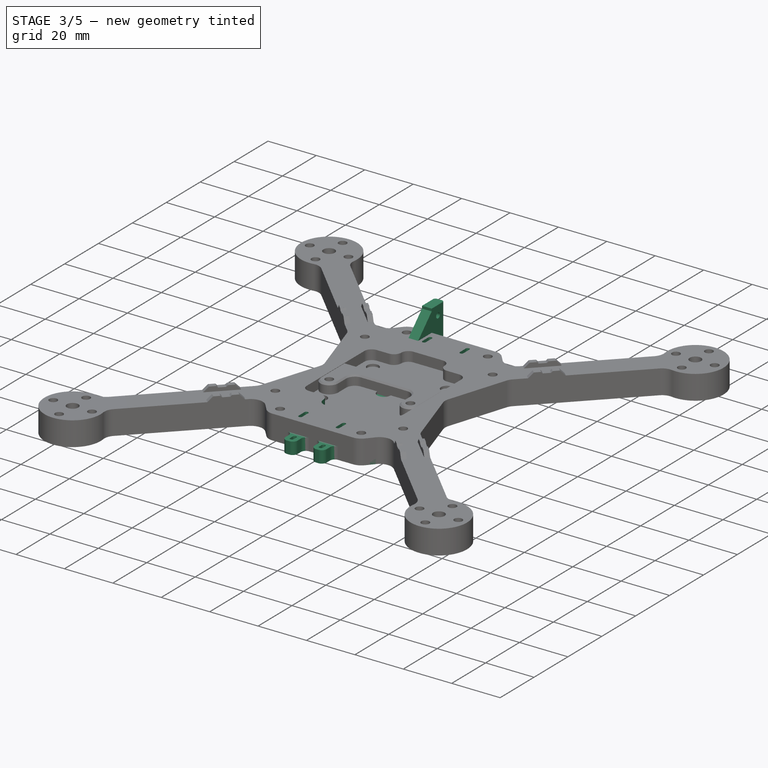
[diagram: stage 3 of 5 — iso view after this stage's code; geometry added in this stage tinted green]
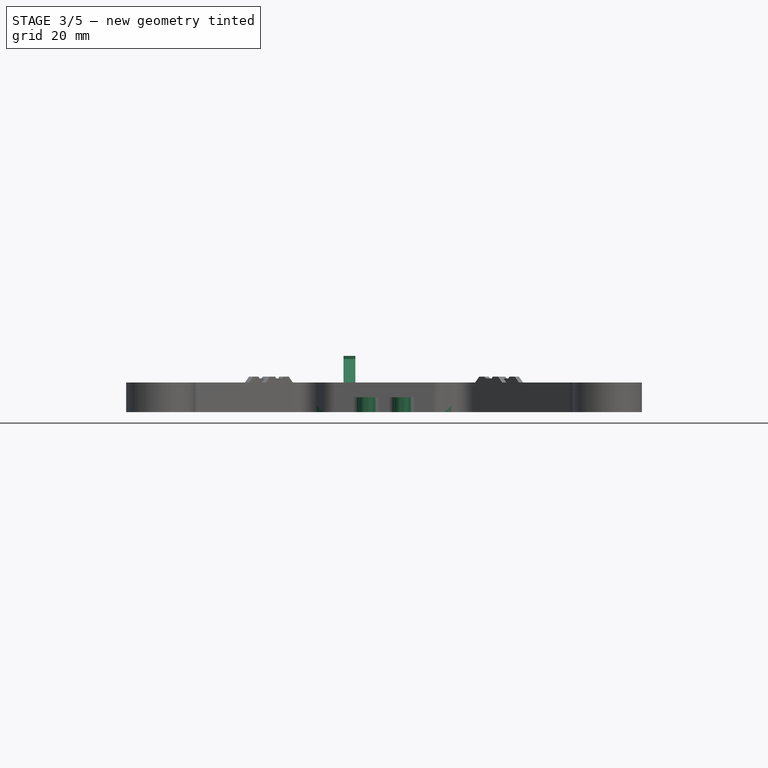
[diagram: stage 3 of 5 — front view after this stage's code; geometry added in this stage tinted green]
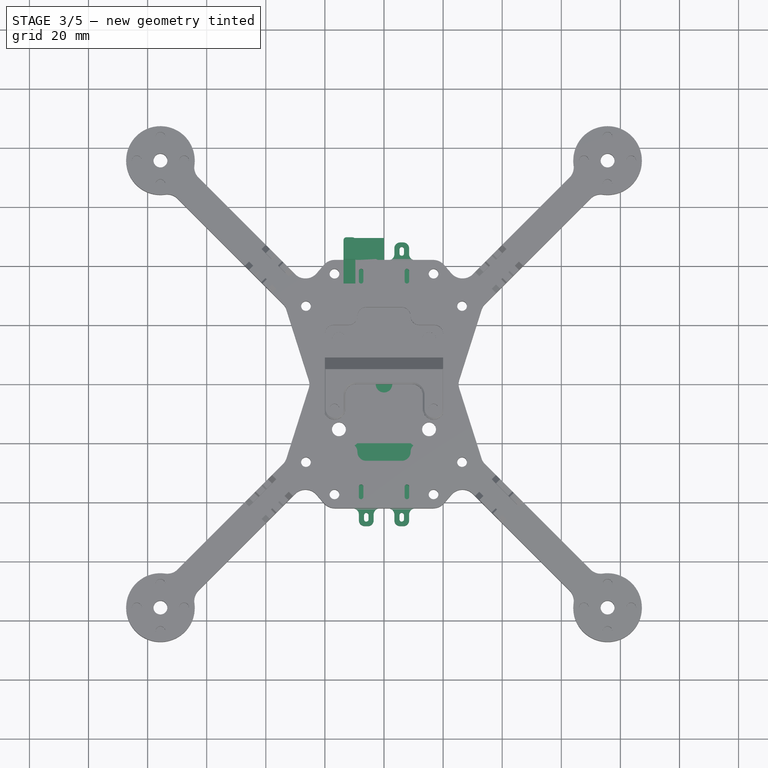
[diagram: stage 3 of 5 — top view after this stage's code; geometry added in this stage tinted green]
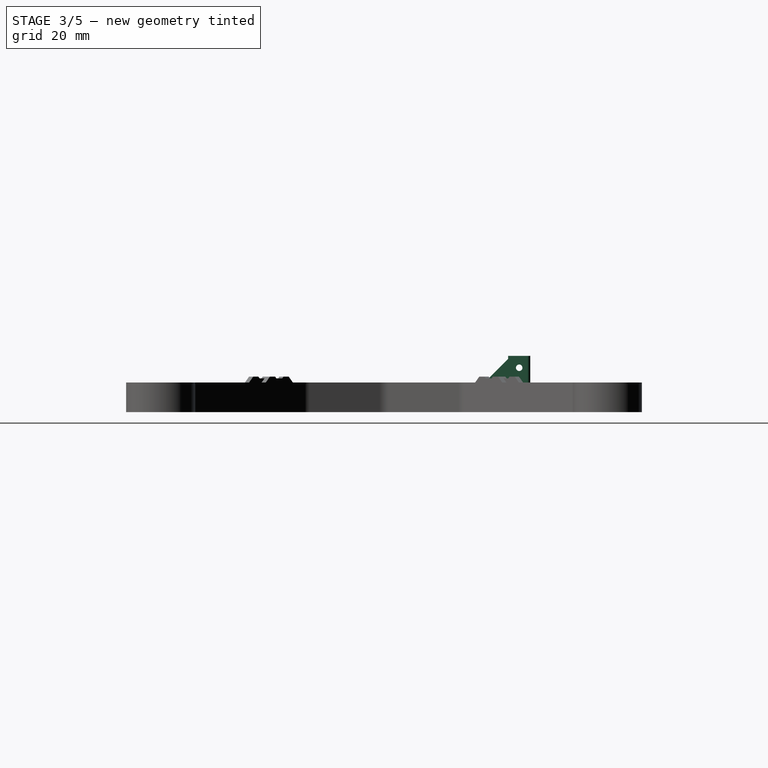
[diagram: stage 3 of 5 — right view after this stage's code; geometry added in this stage tinted green]
FEATURE [Sketcher::SketchObject] Sketch011
  ArcFitTolerance = 0
  AttachmentSupport = -> [XY_Plane002]
  FullyConstrained = true
  MakeInternals = false
  MapMode = 5
  expr: Constraints[1] = Sketch.Constraints.ArmAngle
  expr: Constraints[2] = Sketch.Constraints.WheelbaseRadius
  expr: Constraints[4] = Sketch.Constraints.LegScrewRadius
  expr: Constraints[7] = <<Base>>.Constraints.ScrewHoleDiameter
  sketch-geometry (4):
    g0: LineSegment [constr] StartX=0 StartY=0 StartZ=0 EndX=-75.6604 EndY=75.6604 EndZ=0
    g1: GeomPoint [constr] X=-26.4104 Y=26.4104 Z=0
    g2: Circle CenterX=-26.4104 CenterY=26.4104 CenterZ=0 NormalX=0 NormalY=0 NormalZ=1 AngleXU=0 Radius=1.65
    g3: Circle CenterX=-75.6604 CenterY=75.6604 CenterZ=0 NormalX=0 NormalY=0 NormalZ=1 AngleXU=0 Radius=1.65
  constraints (9):
    c: Coincident(g0,g-1)
    c: Angle(g-2,g0) = 0.785398
    c: Distance(g0) = 107
    c: PointOnObject(g1,g0)
    c: Distance(g1,g0) = 37.35
    c: Coincident(g2,g1)
    c: Coincident(g3,g0)
    c: Diameter(g2) = 3.3
    c: Equal(g2,g3)
FEATURE [Sketcher::SketchObject] Sketch012
  ArcFitTolerance = 0
  AttachmentSupport = -> [XY_Plane003]
  FullyConstrained = true
  MakeInternals = false
  MapMode = 5
  expr: Constraints[10] = <<Base>>.Constraints.ScrewHoleDiameter
  expr: Constraints[11] = <<Base>>.Constraints.ScrewHoleDiameter
  expr: Constraints[16] = <<Base>>.Constraints.ArmWidth
  expr: Constraints[17] = Sketch.Constraints.TopScrewY
  expr: Constraints[18] = Sketch.Constraints.TopScrewX
  expr: Constraints[1] = <<Base>>.Constraints.ArmAngle
  expr: Constraints[2] = <<Base>>.Constraints.WheelbaseRadius
  expr: Constraints[37] = <<Base>>.Constraints.BodyWidthNarrow
  expr: Constraints[4] = <<Base>>.Constraints.PropDiameter
  expr: Constraints[7] = Sketch.Constraints.BodyWidthWide
  expr: Constraints[9] = Sketch.Constraints.LegScrewRadius
  sketch-geometry (36):
    g0: LineSegment [constr] StartX=0 StartY=0 StartZ=0 EndX=-75.6604 EndY=75.6604 EndZ=0
    g1: Circle [constr] CenterX=-75.6604 CenterY=75.6604 CenterZ=0 NormalX=0 NormalY=0 NormalZ=1 AngleXU=0 Radius=65
    g2: Circle CenterX=-26.4104 CenterY=26.4104 CenterZ=0 NormalX=0 NormalY=0 NormalZ=1 AngleXU=0 Radius=1.65
    g3: Circle CenterX=-16.7662 CenterY=37.35 CenterZ=0 NormalX=0 NormalY=0 NormalZ=1 AngleXU=0 Radius=1.65
    g4: LineSegment StartX=-29.8347 StartY=29.8347 StartZ=0 EndX=-26.2991 EndY=33.3702 EndZ=0
    g5: LineSegment StartX=-29.8347 StartY=29.8347 StartZ=0 EndX=-33.3702 EndY=26.2991 EndZ=0
    g6: LineSegment StartX=-26.2991 StartY=33.3702 StartZ=0 EndX=-18.9056 EndY=42 EndZ=0
    g7: LineSegment StartX=-25 StartY=0 StartZ=0 EndX=-33.3702 EndY=26.2991 EndZ=0
    g8: LineSegment StartX=-25 StartY=0 StartZ=0 EndX=-19 EndY=0 EndZ=0
    g9: LineSegment StartX=-19 StartY=0 StartZ=0 EndX=-19 EndY=19 EndZ=0
    g10: LineSegment StartX=0 StartY=42 StartZ=0 EndX=0 EndY=19 EndZ=0
    g11: LineSegment [constr] StartX=-20.0549 StartY=42 StartZ=0 EndX=-18.9056 EndY=42 EndZ=0
    g12: LineSegment StartX=-8.5 StartY=42 StartZ=0 EndX=-18.9056 EndY=42 EndZ=0
    g13: LineSegment StartX=0 StartY=42 StartZ=0 EndX=-3.5 EndY=42 EndZ=0
    g14: LineSegment [constr] StartX=-3.5 StartY=42 StartZ=0 EndX=-8.5 EndY=42 EndZ=0
    g15: LineSegment StartX=-8.5 StartY=42 StartZ=0 EndX=-8.5 EndY=48 EndZ=0
    g16: LineSegment StartX=-8.5 StartY=48 StartZ=0 EndX=-3.5 EndY=48 EndZ=0
    g17: LineSegment StartX=-3.5 StartY=48 StartZ=0 EndX=-3.5 EndY=42 EndZ=0
    g18: LineSegment StartX=-6.75 StartY=45.76 StartZ=0 EndX=-6.75 EndY=44.24 EndZ=0
    g19: LineSegment StartX=-6.01 StartY=43.5 StartZ=0 EndX=-5.99 EndY=43.5 EndZ=0
    g20: LineSegment StartX=-5.25 StartY=44.24 StartZ=0 EndX=-5.25 EndY=45.76 EndZ=0
    g21: LineSegment StartX=-5.99 StartY=46.5 StartZ=0 EndX=-6.01 EndY=46.5 EndZ=0
    g22: ArcOfCircle CenterX=-6.01 CenterY=45.76 CenterZ=0 NormalX=0 NormalY=0 NormalZ=1 AngleXU=0 Radius=0.74 StartAngle=1.5708 EndAngle=3.14159
    g23: ArcOfCircle CenterX=-6.01 CenterY=44.24 CenterZ=0 NormalX=0 NormalY=0 NormalZ=1 AngleXU=0 Radius=0.74 StartAngle=3.14159 EndAngle=4.71239
    g24: ArcOfCircle CenterX=-5.99 CenterY=44.24 CenterZ=0 NormalX=0 NormalY=0 NormalZ=1 AngleXU=0 Radius=0.74 StartAngle=4.71239 EndAngle=6.28319
    g25: ArcOfCircle CenterX=-5.99 CenterY=45.76 CenterZ=0 NormalX=0 NormalY=0 NormalZ=1 AngleXU=0 Radius=0.74 StartAngle=3e-15 EndAngle=1.5708
    g26: GeomPoint [constr] X=-6.75 Y=46.5 Z=0
    g27: GeomPoint [constr] X=-5.25 Y=43.5 Z=0
    g28: LineSegment [constr] StartX=-6.75 StartY=45.76 StartZ=0 EndX=-8.5 EndY=48 EndZ=0
    g29: LineSegment [constr] StartX=-5.25 StartY=44.24 StartZ=0 EndX=-3.5 EndY=42 EndZ=0
    g30: LineSegment [constr] StartX=-5.25 StartY=45.76 StartZ=0 EndX=-3.5 EndY=48 EndZ=0
    g31: LineSegment StartX=-19 StartY=19 StartZ=0 EndX=-5 EndY=19 EndZ=0
    g32: LineSegment [constr] StartX=-5 StartY=19 StartZ=0 EndX=0 EndY=19 EndZ=0
    g33: LineSegment StartX=-5 StartY=19 StartZ=0 EndX=-5 EndY=0 EndZ=0
    g34: LineSegment StartX=0 StartY=19 StartZ=0 EndX=0 EndY=0 EndZ=0
    g35: LineSegment StartX=0 StartY=0 StartZ=0 EndX=-5 EndY=0 EndZ=0
  constraints (95):
    c: Coincident(g0,g-1)
    c: Angle(g-2,g0) = 0.785398
    c: Distance(g0,g0) = 107
    c: Coincident(g1,g0)
    c: Diameter(g1) = 130
    c: PointOnObject(g10,g-2)
    c: PointOnObject(g7,g-1)
    c: DistanceX(g7,g0) = 25
    c: PointOnObject(g2,g0)
    c: Distance(g2,g0) = 37.35
    c: Diameter(g2) = 3.3
    c: Diameter(g3) = 3.3
    c: Coincident(g5,g4)
    c: Perpendicular(g0,g4)
    c: Perpendicular(g0,g5)
    c: Equal(g5,g4)
    c: Distance(g5,g4) = 10
    c: DistanceY(g0,g3) = 37.35
    c: DistanceX(g3,g0) = 16.7662
    c: Coincident(g6,g4)
    c: Coincident(g7,g5)
    c: Coincident(g8,g7)
    c: PointOnObject(g8,g-1)
    c: Coincident(g9,g8)
    c: Vertical(g9)
    c: Coincident(g31,g9)
    c: PointOnObject(g32,g-2)
    c: Coincident(g10,g32)
    c: DistanceX(g31,g32) = 19
    c: PointOnObject(g4,g0)
    c: PointOnObject(g5,g1)
    c: Tangent(g6,g1)
    c: PointOnObject(g11,g1)
    c: Horizontal(g11)
    c: Coincident(g13,g10)
    c: Coincident(g12,g11)
    c: Coincident(g6,g11)
    c: DistanceX(g12,g13) = 18.9056
    c: Coincident(g14,g12)
    c: Horizontal(g12)
    c: Coincident(g13,g14)
    c: Horizontal(g13)
    c: Horizontal(g14)
    c: Coincident(g15,g12)
    c: Vertical(g15)
    c: Coincident(g16,g15)
    c: Horizontal(g16)
    c: Coincident(g17,g16)
    c: Coincident(g17,g13)
    c: Vertical(g17)
    c: DistanceX(g13,g13) = 3.5
    c: DistanceY(g17,g17) = 6
    c: DistanceX(g16,g16) = 5
    c: Tangent(g18,g22) = -1.5708
    c: Tangent(g18,g23) = -1.5708
    c: Tangent(g19,g23) = -1.5708
    c: Tangent(g19,g24) = -1.5708
    c: Tangent(g20,g24) = -1.5708
    c: Tangent(g20,g25) = -1.5708
    c: Tangent(g21,g25) = -1.5708
    c: Tangent(g21,g22) = -1.5708
    c: Vertical(g18)
    c: Vertical(g20)
    c: Horizontal(g19)
    c: Horizontal(g21)
    c: Equal(g22,g23)
    c: Equal(g23,g24)
    c: Equal(g24,g25)
    c: PointOnObject(g26,g18)
    c: PointOnObject(g26,g21)
    c: PointOnObject(g27,g19)
    c: PointOnObject(g27,g20)
    c: DistanceX(g18,g20) = 1.5
    c: DistanceY(g19,g21) = 3
    c: Radius(g25) = 0.74
    c: Coincident(g28,g18)
    c: Coincident(g28,g15)
    c: Coincident(g29,g20)
    c: Coincident(g29,g13)
    c: Coincident(g30,g20)
    c: Coincident(g30,g16)
    c: Equal(g28,g30)
    c: Equal(g30,g29)
    c: Coincident(g31,g32)
    c: Horizontal(g31)
    c: Horizontal(g32)
    c: Coincident(g33,g31)
    c: PointOnObject(g33,g-1)
    c: Vertical(g33)
    c: Coincident(g34,g10)
    c: Coincident(g34,g0)
    c: Coincident(g35,g0)
    c: Coincident(g35,g33)
    c: DistanceY(g9,g9) = 19
    c: DistanceX(g32,g32) = 5
FEATURE [PartDesign::Mirrored] Mirrored009
  MirrorPlane = -> Sketch012 [V_Axis]
  Suppressed = false
  TransformMode = 0
FEATURE [PartDesign::Mirrored] Mirrored010
  MirrorPlane = -> Sketch012 [H_Axis]
  Suppressed = false
  TransformMode = 0
FEATURE [PartDesign::Pad] Pad005  label="TopPad"
  Direction = (0,0,1)
  Length = 5
  Length2 = 10
  Profile = -> Sketch012
  ReferenceAxis = -> Sketch012 [N_Axis]
  Suppressed = false
  Type = 0
FEATURE [PartDesign::MultiTransform] MultiTransform004
  BaseFeature = -> Pad005
  Originals = -> [Pad005]
  Suppressed = false
  TransformMode = 0
  Transformations = -> [Mirrored009,Mirrored010]
FEATURE [PartDesign::Fillet] Fillet016
  Base = -> MultiTransform004 [Edge263,Edge266,Edge178,Edge175,Edge107,Edge108,Edge241,Edge242,Edge245,Edge111]
  BaseFeature = -> MultiTransform004
  Radius = 5
  SupportTransform = false
  Suppressed = false
  UseAllEdges = false
FEATURE [PartDesign::Fillet] Fillet017
  Base = -> Fillet016 [Edge62,Edge137,Edge267,Edge271,Edge220,Edge224,Edge66,Edge141]
  BaseFeature = -> Fillet016
  Radius = 3
  SupportTransform = false
  Suppressed = false
  UseAllEdges = false
  expr: Radius = <<CenterHoleFillet>>.Radius
FEATURE [PartDesign::Body] Body001  label="Legs"
  AllowCompound = false
  Group = -> [Sketch009,Pad003,Sketch010,Pad004,Sketch011,Chamfer,Fillet014,Fillet018,Chamfer001,Pocket006,Sketch013,Pocket007,Sketch014,Pad006,PolarPattern001,Fillet015]
  Origin = -> Origin002
  Placement = pos=(0,0,-27.07) rot=(0,0,1;0rad)
  Tip = -> Fillet015
FEATURE [PartDesign::Fillet] Fillet019
  Base = -> Fillet017 [Edge124,Edge122,Edge256,Edge260,Edge264,Edge262,Edge202,Edge316,Edge198,Edge314,Edge312,Edge206,Edge204,Edge308,Edge120,Edge116]
  BaseFeature = -> Fillet017
  Radius = 2
  SupportTransform = false
  Suppressed = false
  UseAllEdges = false
FEATURE [Sketcher::SketchObject] Sketch016
  ArcFitTolerance = 1e-06
  AttachmentSupport = -> [XY_Plane003]
  FullyConstrained = true
  MakeInternals = false
  MapMode = 5
  expr: Constraints[31] = <<Base>>.Constraints.HeatSetDiameter
  sketch-geometry (34):
    g0: LineSegment [constr] StartX=-15.25 StartY=-15.25 StartZ=0 EndX=15.25 EndY=-15.25 EndZ=0
    g1: LineSegment [constr] StartX=15.25 StartY=-15.25 StartZ=0 EndX=15.25 EndY=15.25 EndZ=0
    g2: LineSegment [constr] StartX=15.25 StartY=15.25 StartZ=0 EndX=-15.25 EndY=15.25 EndZ=0
    g3: LineSegment [constr] StartX=-15.25 StartY=15.25 StartZ=0 EndX=-15.25 EndY=-15.25 EndZ=0
    g4: GeomPoint [constr] X=0 Y=0 Z=0
    g5: Circle CenterX=-15.25 CenterY=15.25 CenterZ=0 NormalX=0 NormalY=0 NormalZ=1 AngleXU=0 Radius=2.35
    g6: Circle CenterX=15.25 CenterY=15.25 CenterZ=0 NormalX=0 NormalY=0 NormalZ=1 AngleXU=0 Radius=2.35
    g7: Circle CenterX=-15.25 CenterY=-15.25 CenterZ=0 NormalX=0 NormalY=0 NormalZ=1 AngleXU=0 Radius=2.35
    g8: Circle CenterX=15.25 CenterY=-15.25 CenterZ=0 NormalX=0 NormalY=0 NormalZ=1 AngleXU=0 Radius=2.35
    g9: ArcOfCircle CenterX=-15.25 CenterY=15.25 CenterZ=0 NormalX=0 NormalY=0 NormalZ=1 AngleXU=0 Radius=4.35 StartAngle=4.71239 EndAngle=6.28319
    g10: ArcOfCircle CenterX=15.25 CenterY=15.25 CenterZ=0 NormalX=0 NormalY=0 NormalZ=1 AngleXU=0 Radius=4.35 StartAngle=3.14159 EndAngle=4.71239
    g11: ArcOfCircle CenterX=15.25 CenterY=-15.25 CenterZ=0 NormalX=0 NormalY=0 NormalZ=1 AngleXU=0 Radius=4.35 StartAngle=1.5708 EndAngle=3.14159
    g12: ArcOfCircle CenterX=-15.25 CenterY=-15.25 CenterZ=0 NormalX=0 NormalY=0 NormalZ=1 AngleXU=0 Radius=4.35 StartAngle=0 EndAngle=1.5708
    g13: GeomPoint X=-12.9 Y=15.25 Z=0
    g14: LineSegment StartX=-10.9 StartY=15.25 StartZ=0 EndX=-10.9 EndY=19.1 EndZ=0
    g15: LineSegment [constr] StartX=-10.9 StartY=19.1 StartZ=0 EndX=10.9 EndY=19.1 EndZ=0
    g16: LineSegment StartX=10.9 StartY=19.1 StartZ=0 EndX=10.9 EndY=15.25 EndZ=0
    g17: LineSegment StartX=15.25 StartY=10.9 StartZ=0 EndX=19.1 EndY=10.9 EndZ=0
    g18: LineSegment [constr] StartX=19.1 StartY=10.9 StartZ=0 EndX=19.1 EndY=-10.9 EndZ=0
    g19: LineSegment StartX=19.1 StartY=-10.9 StartZ=0 EndX=15.25 EndY=-10.9 EndZ=0
    g20: LineSegment StartX=10.9 StartY=-15.25 StartZ=0 EndX=10.9 EndY=-19.1 EndZ=0
    g21: LineSegment [constr] StartX=10.9 StartY=-19.1 StartZ=0 EndX=-10.9 EndY=-19.1 EndZ=0
    g22: LineSegment StartX=-10.9 StartY=-19.1 StartZ=0 EndX=-10.9 EndY=-15.25 EndZ=0
    g23: LineSegment StartX=-15.25 StartY=-10.9 StartZ=0 EndX=-19.1 EndY=-10.9 EndZ=0
    g24: LineSegment [constr] StartX=-19.1 StartY=-10.9 StartZ=0 EndX=-19.1 EndY=10.9 EndZ=0
    g25: LineSegment StartX=-19.1 StartY=10.9 StartZ=0 EndX=-15.25 EndY=10.9 EndZ=0
    g26: LineSegment StartX=-10.9 StartY=19.1 StartZ=0 EndX=-19.1 EndY=19.1 EndZ=0
    g27: LineSegment StartX=-19.1 StartY=19.1 StartZ=0 EndX=-19.1 EndY=10.9 EndZ=0
    g28: LineSegment StartX=-19.1 StartY=-10.9 StartZ=0 EndX=-19.1 EndY=-19.1 EndZ=0
    g29: LineSegment StartX=-19.1 StartY=-19.1 StartZ=0 EndX=-10.9 EndY=-19.1 EndZ=0
    g30: LineSegment StartX=10.9 StartY=-19.1 StartZ=0 EndX=19.1 EndY=-19.1 EndZ=0
    g31: LineSegment StartX=19.1 StartY=-19.1 StartZ=0 EndX=19.1 EndY=-10.9 EndZ=0
    g32: LineSegment StartX=19.1 StartY=10.9 StartZ=0 EndX=19.1 EndY=19.1 EndZ=0
    g33: LineSegment StartX=19.1 StartY=19.1 StartZ=0 EndX=10.9 EndY=19.1 EndZ=0
  constraints (88):
    c: Coincident(g0,g1)
    c: Coincident(g1,g2)
    c: Coincident(g2,g3)
    c: Coincident(g3,g0)
    c: Horizontal(g0)
    c: Horizontal(g2)
    c: Vertical(g1)
    c: Vertical(g3)
    c: Symmetric(g2,g0,g4)
    c: Coincident(g4,g-1)
    c: Equal(g3,g2)
    c: DistanceY(g1,g1) = 30.5
    c: Coincident(g5,g2)
    c: Coincident(g6,g1)
    c: Coincident(g7,g0)
    c: Coincident(g8,g0)
    c: Coincident(g9,g2)
    c: PointOnObject(g9,g3)
    c: PointOnObject(g9,g2)
    c: Coincident(g10,g1)
    c: PointOnObject(g10,g2)
    c: PointOnObject(g10,g1)
    c: Coincident(g11,g0)
    c: PointOnObject(g11,g1)
    c: PointOnObject(g11,g0)
    c: Coincident(g12,g0)
    c: PointOnObject(g12,g0)
    c: PointOnObject(g12,g3)
    c: Equal(g7,g5)
    c: Equal(g7,g6)
    c: Equal(g7,g8)
    c: Diameter(g7) = 4.7
    c: Equal(g9,g10)
    c: Equal(g10,g12)
    c: Equal(g12,g11)
    c: PointOnObject(g13,g5)
    c: PointOnObject(g13,g2)
    c: DistanceX(g13,g9) = 2
    c: Coincident(g14,g9)
    c: Vertical(g14)
    c: Coincident(g15,g14)
    c: Horizontal(g15)
    c: Coincident(g16,g15)
    c: Coincident(g16,g10)
    c: Vertical(g16)
    c: Coincident(g17,g10)
    c: Horizontal(g17)
    c: Coincident(g17,g18)
    c: Vertical(g18)
    c: Coincident(g18,g19)
    c: Coincident(g19,g11)
    c: Horizontal(g19)
    c: Tangent(g11,g20) = -1.5708
    c: Coincident(g20,g21)
    c: Horizontal(g21)
    c: Coincident(g21,g22)
    c: Coincident(g22,g12)
    c: Vertical(g22)
    c: Tangent(g12,g23) = -1.5708
    c: Coincident(g23,g24)
    c: Vertical(g24)
    c: Coincident(g24,g25)
    c: Coincident(g25,g9)
    c: Horizontal(g25)
    c: Equal(g25,g17)
    c: Equal(g14,g22)
    c: Equal(g14,g25)
    c: DistanceX(g24,g17) = 38.2
    c: Coincident(g14,g26)
    c: Horizontal(g26)
    c: Coincident(g26,g27)
    c: Coincident(g27,g24)
    c: Vertical(g27)
    c: Coincident(g23,g28)
    c: Vertical(g28)
    c: Coincident(g28,g29)
    c: Coincident(g29,g21)
    c: Horizontal(g29)
    c: Coincident(g20,g30)
    c: Horizontal(g30)
    c: Coincident(g30,g31)
    c: Coincident(g31,g18)
    c: Vertical(g31)
    c: Coincident(g17,g32)
    c: Coincident(g32,g33)
    c: Coincident(g33,g15)
    c: Horizontal(g33)
    c: Vertical(g32)
FEATURE [PartDesign::Pad] Pad007
  BaseFeature = -> Fillet019
  Direction = (0,0,1)
  Length = 5
  Length2 = 10
  Profile = -> Sketch016
  ReferenceAxis = -> Sketch016 [N_Axis]
  Suppressed = false
  Type = 0
  expr: Length = <<TopPad>>.Length
FEATURE [PartDesign::Fillet] Fillet020
  Base = -> Pad007 [Edge232,Edge228,Edge120,Edge124,Edge381,Edge377,Edge294,Edge298]
  BaseFeature = -> Pad007
  Radius = 2.5
  SupportTransform = false
  Suppressed = false
  UseAllEdges = false
FEATURE [Sketcher::SketchObject] Sketch017  label="CameraAttachmentPillars"
  ArcFitTolerance = 1e-06
  AttachmentSupport = -> [XY_Plane003]
  FullyConstrained = true
  MakeInternals = false
  MapMode = 5
  expr: Constraints[2] = <<Base>>.Constraints.BodyLengthHalf
  sketch-geometry (17):
    g0: LineSegment [constr] StartX=0 StartY=42 StartZ=0 EndX=9.7 EndY=42 EndZ=0
    g1: LineSegment [constr] StartX=0 StartY=42 StartZ=0 EndX=-9.7 EndY=42 EndZ=0
    g2: LineSegment StartX=-13.7 StartY=42 StartZ=0 EndX=-9.7 EndY=42 EndZ=0
    g3: LineSegment [constr] StartX=-13.7 StartY=49.5 StartZ=0 EndX=-13.7 EndY=48.5 EndZ=0
    g4: LineSegment StartX=-13.7 StartY=48.5 StartZ=0 EndX=-13.7 EndY=42 EndZ=0
    g5: LineSegment [constr] StartX=-12.7 StartY=49.5 StartZ=0 EndX=-13.7 EndY=49.5 EndZ=0
    g6: ArcOfCircle CenterX=-12.7 CenterY=48.5 CenterZ=0 NormalX=0 NormalY=0 NormalZ=1 AngleXU=0 Radius=1 StartAngle=1.5708 EndAngle=3.14159
    g7: LineSegment [constr] StartX=-13.7 StartY=48.5 StartZ=0 EndX=-12.7 EndY=48.5 EndZ=0
    g8: LineSegment [constr] StartX=-12.7 StartY=49.5 StartZ=0 EndX=-12.7 EndY=48.5 EndZ=0
    g9: LineSegment [constr] StartX=-9.7 StartY=49.5 StartZ=0 EndX=-10.7 EndY=49.5 EndZ=0
    g10: LineSegment StartX=-10.7 StartY=49.5 StartZ=0 EndX=-12.7 EndY=49.5 EndZ=0
    g11: LineSegment StartX=-9.7 StartY=42 StartZ=0 EndX=-9.7 EndY=48.5 EndZ=0
    g12: LineSegment [constr] StartX=-9.7 StartY=48.5 StartZ=0 EndX=-9.7 EndY=49.5 EndZ=0
    g13: ArcOfCircle CenterX=-10.7 CenterY=48.5 CenterZ=0 NormalX=0 NormalY=0 NormalZ=1 AngleXU=0 Radius=1 StartAngle=-1.8e-15 EndAngle=1.5708
    g14: LineSegment [constr] StartX=-12.7 StartY=48.5 StartZ=0 EndX=-10.7 EndY=48.5 EndZ=0
    g15: LineSegment [constr] StartX=-10.7 StartY=48.5 StartZ=0 EndX=-10.7 EndY=49.5 EndZ=0
    g16: LineSegment [constr] StartX=-10.7 StartY=48.5 StartZ=0 EndX=-9.7 EndY=48.5 EndZ=0
  constraints (46):
    c: PointOnObject(g0,g-2)
    c: Horizontal(g0)
    c: DistanceY(g-1,g0) = 42
    c: Coincident(g1,g0)
    c: Horizontal(g1)
    c: Equal(g1,g0)
    c: DistanceX(g1,g0) = 19.4  'CameraWidth'
    c: Coincident(g12,g9)
    c: Coincident(g5,g3)
    c: Coincident(g4,g2)
    c: Coincident(g2,g11)
    c: Horizontal(g2)
    c: Coincident(g11,g1)
    c: DistanceX(g5,g9) = 4
    c: DistanceY(g4,g3) = 7.5  'CameraPillarWidth'
    c: Coincident(g3,g4)
    c: Vertical(g3)
    c: Vertical(g4)
    c: Coincident(g10,g5)
    c: Horizontal(g5)
    c: Coincident(g6,g3)
    c: Coincident(g6,g10)
    c: Coincident(g7,g3)
    c: Coincident(g7,g6)
    c: Horizontal(g7)
    c: Coincident(g8,g10)
    c: Coincident(g8,g6)
    c: Vertical(g8)
    c: DistanceY(g8,g8) = 1
    c: Coincident(g9,g10)
    c: Horizontal(g9)
    c: Horizontal(g10)
    c: Coincident(g11,g12)
    c: Vertical(g11)
    c: Vertical(g12)
    c: Coincident(g13,g9)
    c: Coincident(g13,g11)
    c: Coincident(g14,g6)
    c: Coincident(g14,g13)
    c: Horizontal(g14)
    c: Coincident(g15,g13)
    c: Coincident(g15,g9)
    c: Coincident(g16,g13)
    c: Coincident(g16,g11)
    c: Horizontal(g16)
    c: Vertical(g15)
FEATURE [PartDesign::Pad] Pad008  label="CameraPillar"
  BaseFeature = -> Fillet020
  Direction = (0,0,1)
  Length = 19
  Length2 = 10
  Profile = -> Sketch017
  ReferenceAxis = -> Sketch017 [N_Axis]
  Suppressed = false
  Type = 0
FEATURE [Sketcher::SketchObject] Sketch018
  ArcFitTolerance = 1e-06
  AttachmentSupport = -> [XY_Plane003]
  ExternalGeometry = -> [Pad008]
  FullyConstrained = true
  MakeInternals = false
  MapMode = 5
  sketch-geometry (4):
    g0: LineSegment StartX=-12.7 StartY=49.5 StartZ=0 EndX=-12.7 EndY=42 EndZ=0
    g1: LineSegment StartX=-12.7 StartY=42 StartZ=0 EndX=0 EndY=42 EndZ=0
    g2: LineSegment StartX=0 StartY=42 StartZ=0 EndX=0 EndY=49.5 EndZ=0
    g3: LineSegment StartX=0 StartY=49.5 StartZ=0 EndX=-12.7 EndY=49.5 EndZ=0
  constraints (10):
    c: Coincident(g0,g1)
    c: Coincident(g1,g2)
    c: Coincident(g2,g3)
    c: Coincident(g3,g0)
    c: Vertical(g0)
    c: Vertical(g2)
    c: Horizontal(g1)
    c: Horizontal(g3)
    c: Coincident(g0,g-3)
    c: Coincident(g1,g-4)
FEATURE [PartDesign::Pad] Pad009  label="CameraPillarBottom"
  BaseFeature = -> Pad008
  Direction = (0,0,1)
  Length = 5
  Length2 = 10
  Profile = -> Sketch018
  ReferenceAxis = -> Sketch018 [N_Axis]
  Suppressed = false
  Type = 0
  expr: Length = <<TopPad>>.Length
FEATURE [Sketcher::SketchObject] Sketch019
  ArcFitTolerance = 1e-06
  AttachmentSupport = -> [Pad009]
  FullyConstrained = true
  MakeInternals = false
  MapMode = 5
  Placement = pos=(-13.7,0,0) rot=(0.57735,-0.57735,-0.57735;2.0944rad)
  expr: Constraints[0] = <<Base>>.Constraints.BodyLengthHalf + <<CameraAttachmentPillars>>.Constraints.CameraPillarWidth / 2
  sketch-geometry (1):
    g0: Circle CenterX=-45.75 CenterY=15 CenterZ=0 NormalX=0 NormalY=0 NormalZ=1 AngleXU=0 Radius=1.1
  constraints (3):
    c: DistanceX(g0,g-1) = 45.75
    c: DistanceY(g-1,g0) = 15
    c: Diameter(g0) = 2.2
FEATURE [PartDesign::Pocket] Pocket009  label="CameraScrewHole"
  BaseFeature = -> Pad009
  Direction = (1,0,0)
  Length = 4
  Length2 = 5
  Profile = -> Sketch019
  ReferenceAxis = -> Sketch019 [N_Axis]
  Suppressed = false
  Type = 0
FEATURE [Sketcher::SketchObject] Sketch020
  ArcFitTolerance = 1e-06
  AttachmentSupport = -> [Pocket009]
  ExternalGeometry = -> [Pocket009]
  FullyConstrained = true
  MakeInternals = false
  MapMode = 5
  Placement = pos=(-13.7,0,0) rot=(0.57735,-0.57735,-0.57735;2.0944rad)
  sketch-geometry (1):
    g0: Circle CenterX=-45.75 CenterY=15 CenterZ=0 NormalX=0 NormalY=0 NormalZ=1 AngleXU=0 Radius=2
  constraints (2):
    c: Coincident(g0,g-3)
    c: Diameter(g0) = 4
FEATURE [PartDesign::Pocket] Pocket010  label="CameraScrewCap"
  BaseFeature = -> Pocket009
  Direction = (1,0,0)
  Length = 2
  Length2 = 5
  Profile = -> Sketch020
  ReferenceAxis = -> Sketch020 [N_Axis]
  Suppressed = false
  Type = 0
FEATURE [PartDesign::Chamfer] Chamfer002  label="CameraPillarBrace"
  Angle = 45
  Base = -> Pocket010 [Edge192,Edge191,Edge193]
  BaseFeature = -> Pocket010
  ChamferType = 0
  FlipDirection = false
  Size = 12.98
  Size2 = 1
  SupportTransform = false
  Suppressed = false
  UseAllEdges = false
  expr: Size = <<CameraPillar>>.Length - <<TopPad>>.Length - 1.02 mm
FEATURE [PartDesign::Mirrored] Mirrored013  label="MiroredJSTPocket"
  BaseFeature = -> Fillet024
  MirrorPlane = -> Sketch036 [H_Axis]
  Originals = -> [Pocket022,Fillet024]
  Suppressed = false
  TransformMode = 0
FEATURE [Sketcher::SketchObject] Sketch037
  ArcFitTolerance = 1e-06
  AttachmentSupport = -> [Mirrored013]
  ExternalGeometry = -> [Mirrored013]
  FullyConstrained = true
  MakeInternals = false
  MapMode = 5
  Placement = pos=(0,0,10) rot=(0,0,1;0rad)
  sketch-geometry (10):
    g0: LineSegment StartX=7.74 StartY=-39 StartZ=0 EndX=7.76 EndY=-39 EndZ=0
    g1: LineSegment StartX=8.5 StartY=-38.26 StartZ=0 EndX=8.5 EndY=-34.74 EndZ=0
    g2: LineSegment StartX=7.76 StartY=-34 StartZ=0 EndX=7.74 EndY=-34 EndZ=0
    g3: LineSegment StartX=7 StartY=-34.74 StartZ=0 EndX=7 EndY=-38.26 EndZ=0
    g4: ArcOfCircle CenterX=7.74 CenterY=-38.26 CenterZ=0 NormalX=0 NormalY=0 NormalZ=1 AngleXU=0 Radius=0.74 StartAngle=3.14159 EndAngle=4.71239
    g5: ArcOfCircle CenterX=7.76 CenterY=-38.26 CenterZ=0 NormalX=0 NormalY=0 NormalZ=1 AngleXU=0 Radius=0.74 StartAngle=4.71239 EndAngle=6.28319
    g6: ArcOfCircle CenterX=7.76 CenterY=-34.74 CenterZ=0 NormalX=0 NormalY=0 NormalZ=1 AngleXU=0 Radius=0.74 StartAngle=7e-16 EndAngle=1.5708
    g7: ArcOfCircle CenterX=7.74 CenterY=-34.74 CenterZ=0 NormalX=0 NormalY=0 NormalZ=1 AngleXU=0 Radius=0.74 StartAngle=1.5708 EndAngle=3.14159
    g8: GeomPoint [constr] X=7 Y=-39 Z=0
    g9: GeomPoint [constr] X=8.5 Y=-34 Z=0
  constraints (24):
    c: Tangent(g0,g4) = -1.5708
    c: Tangent(g0,g5) = -1.5708
    c: Tangent(g1,g5) = -1.5708
    c: Tangent(g1,g6) = -1.5708
    c: Tangent(g2,g6) = -1.5708
    c: Tangent(g2,g7) = -1.5708
    c: Tangent(g3,g7) = -1.5708
    c: Tangent(g3,g4) = -1.5708
    c: Horizontal(g0)
    c: Horizontal(g2)
    c: Vertical(g1)
    c: Vertical(g3)
    c: Equal(g4,g5)
    c: Equal(g5,g6)
    c: Equal(g6,g7)
    c: PointOnObject(g8,g0)
    c: PointOnObject(g8,g3)
    c: PointOnObject(g9,g1)
    c: PointOnObject(g9,g2)
    c: DistanceX(g3,g1) = 1.5
    c: Radius(g7) = 0.74
    c: DistanceY(g0,g2) = 5
    c: DistanceY(g-3,g0) = 3
    c: DistanceX(g-3,g3) = 7
FEATURE [PartDesign::Pocket] Pocket023  label="CapacitorZipTie"
  BaseFeature = -> Mirrored013
  Direction = (0,0,-1)
  Length = 5
  Length2 = 5
  Profile = -> Sketch037
  ReferenceAxis = -> Sketch037 [N_Axis]
  Suppressed = false
  Type = 1
FEATURE [PartDesign::Mirrored] Mirrored014
  MirrorPlane = -> Sketch037 [V_Axis]
  Suppressed = false
  TransformMode = 0
FEATURE [PartDesign::Mirrored] Mirrored015
  MirrorPlane = -> Sketch037 [H_Axis]
  Suppressed = false
  TransformMode = 0
FEATURE [PartDesign::MultiTransform] MultiTransform005  label="CapacitorZipTieMirored"
  BaseFeature = -> Pocket023
  Originals = -> [Pocket023]
  Suppressed = false
  TransformMode = 0
  Transformations = -> [Mirrored014,Mirrored015]
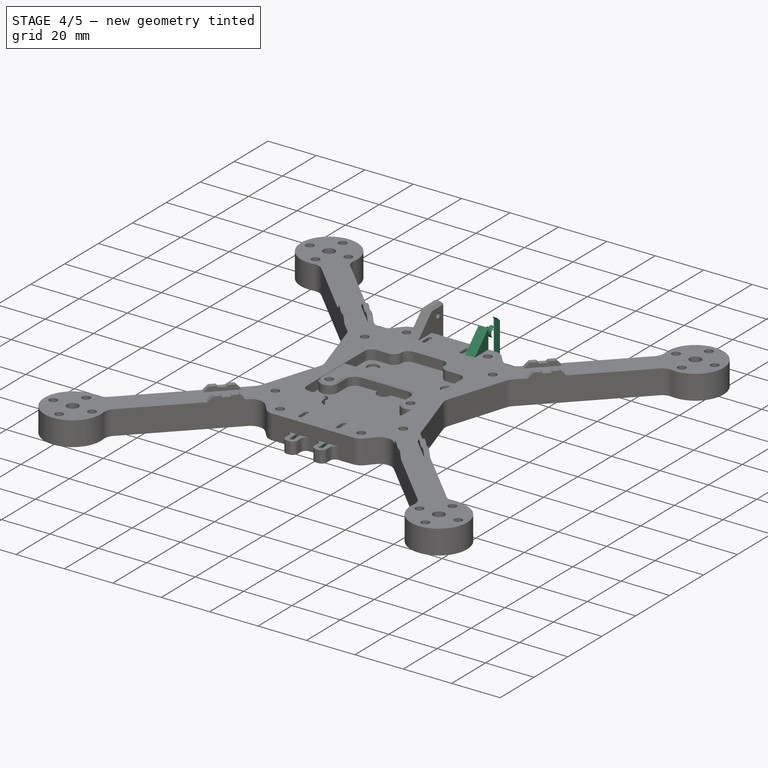
[diagram: stage 4 of 5 — iso view after this stage's code; geometry added in this stage tinted green]
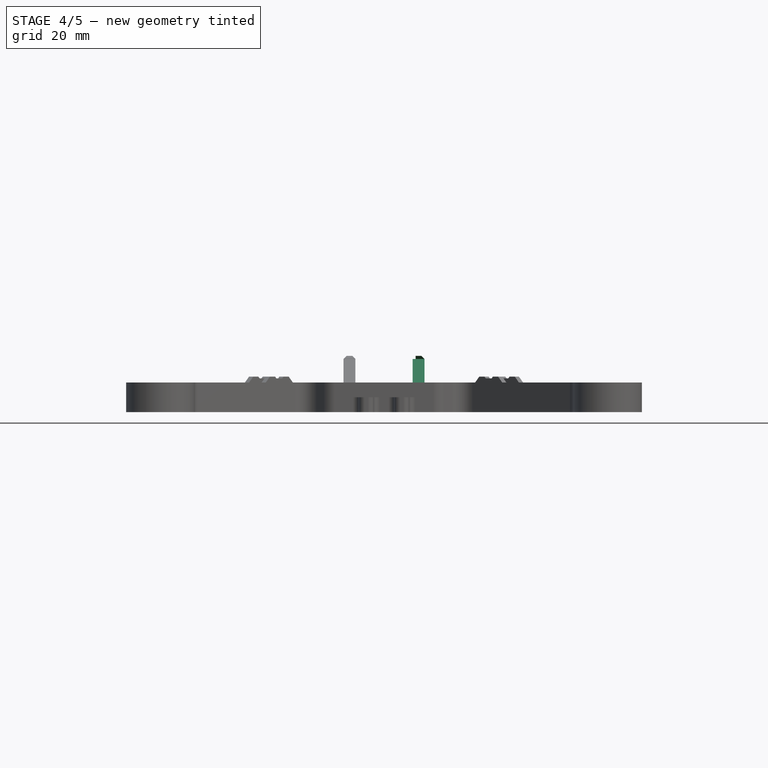
[diagram: stage 4 of 5 — front view after this stage's code; geometry added in this stage tinted green]
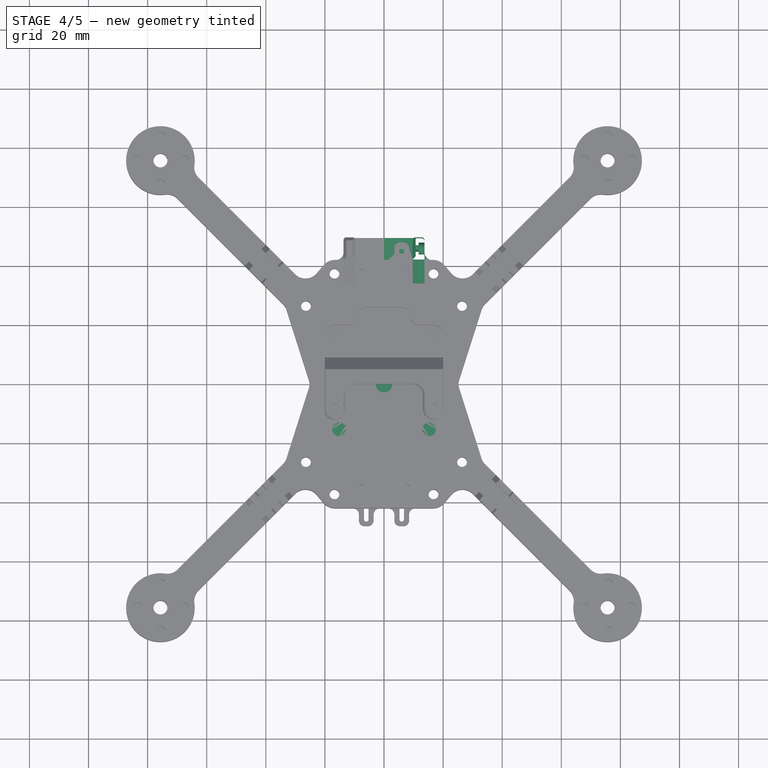
[diagram: stage 4 of 5 — top view after this stage's code; geometry added in this stage tinted green]
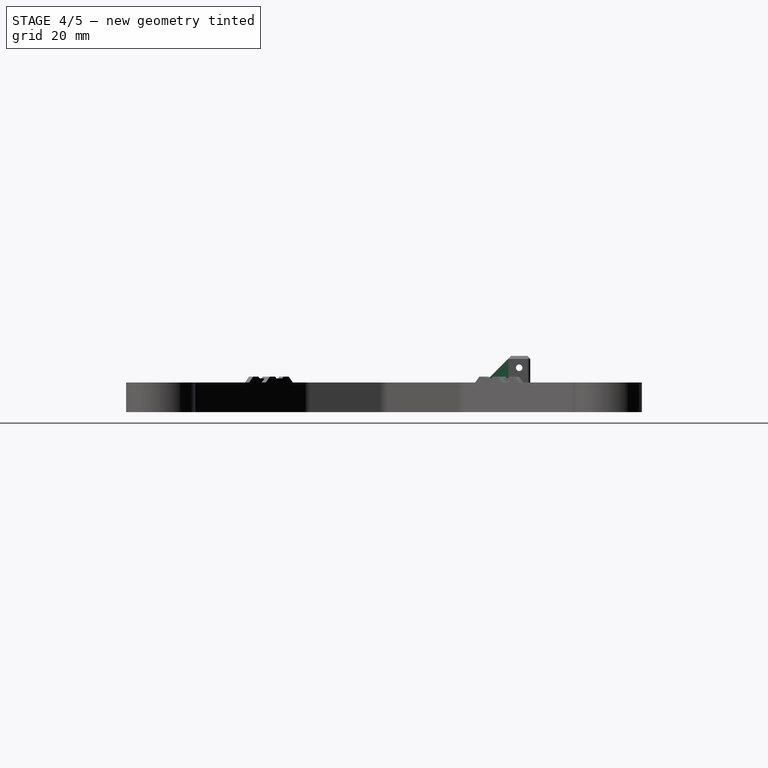
[diagram: stage 4 of 5 — right view after this stage's code; geometry added in this stage tinted green]
FEATURE [PartDesign::Mirrored] Mirrored011  label="CameraPillarMirrored"
  BaseFeature = -> Chamfer002
  MirrorPlane = -> Sketch017 [V_Axis]
  Originals = -> [Pad008,Pad009,Pocket009,Pocket010,Chamfer002]
  Suppressed = false
  TransformMode = 0
FEATURE [PartDesign::Fillet] Fillet021  label="CameraPillarBottomFillet"
  Base = -> Mirrored011 [Edge95,Edge261]
  BaseFeature = -> Mirrored011
  Radius = 2.8
  SupportTransform = false
  Suppressed = false
  UseAllEdges = false
FEATURE [PartDesign::Chamfer] Chamfer003  label="CameraPillarTopChamfer"
  Angle = 45
  Base = -> Fillet021 [Edge346,Edge550,Edge203,Edge64]
  BaseFeature = -> Fillet021
  ChamferType = 0
  FlipDirection = false
  Size = 0.999
  Size2 = 1
  SupportTransform = false
  Suppressed = false
  UseAllEdges = false
FEATURE [Sketcher::SketchObject] Sketch021
  ArcFitTolerance = 1e-06
  AttachmentSupport = -> [Chamfer003]
  ExternalGeometry = -> [Chamfer003]
  FullyConstrained = true
  MakeInternals = false
  MapMode = 5
  Placement = pos=(0,0,5) rot=(0,0,1;0rad)
  sketch-geometry (4):
    g0: LineSegment StartX=-8 StartY=19 StartZ=0 EndX=-8 EndY=-19 EndZ=0
    g1: LineSegment StartX=-8 StartY=-19 StartZ=0 EndX=8 EndY=-19 EndZ=0
    g2: LineSegment StartX=8 StartY=-19 StartZ=0 EndX=8 EndY=19 EndZ=0
    g3: LineSegment StartX=8 StartY=19 StartZ=0 EndX=-8 EndY=19 EndZ=0
  constraints (10):
    c: Coincident(g0,g1)
    c: Coincident(g1,g2)
    c: Coincident(g2,g3)
    c: Coincident(g3,g0)
    c: Vertical(g0)
    c: Vertical(g2)
    c: Horizontal(g1)
    c: Horizontal(g3)
    c: Coincident(g0,g-3)
    c: Coincident(g1,g-4)
FEATURE [PartDesign::Pocket] Pocket011  label="VtxCableChannel"
  BaseFeature = -> Chamfer003
  Direction = (0,0,-1)
  Length = 1.6
  Length2 = 5
  Profile = -> Sketch021
  ReferenceAxis = -> Sketch021 [N_Axis]
  Suppressed = false
  Type = 0
FEATURE [PartDesign::Chamfer] Chamfer004  label="VtxCableChannelChamfer"
  Angle = 45
  Base = -> Pocket011 [Edge158,Edge414]
  BaseFeature = -> Pocket011
  ChamferType = 0
  FlipDirection = false
  Size = 1.39
  Size2 = 1
  SupportTransform = false
  Suppressed = false
  UseAllEdges = false
FEATURE [Sketcher::SketchObject] Sketch027
  ArcFitTolerance = 1e-06
  ExternalGeometry = -> [Chamfer004]
  FullyConstrained = true
  MakeInternals = false
  MapMode = 5
  Placement = pos=(0,0,0) rot=(1,0,0;3.14159rad)
  sketch-geometry (14):
    g0: LineSegment StartX=-6.75 StartY=39.75 StartZ=0 EndX=-6.75 EndY=45.76 EndZ=0
    g1: LineSegment StartX=-6.75 StartY=45.76 StartZ=0 EndX=-5.25 EndY=45.76 EndZ=0
    g2: LineSegment StartX=-5.25 StartY=45.76 StartZ=0 EndX=-5.25 EndY=39.75 EndZ=0
    g3: LineSegment StartX=5.25 StartY=39.75 StartZ=0 EndX=5.25 EndY=45.76 EndZ=0
    g4: LineSegment StartX=5.25 StartY=45.76 StartZ=0 EndX=6.75 EndY=45.76 EndZ=0
    g5: LineSegment StartX=6.75 StartY=45.76 StartZ=0 EndX=6.75 EndY=39.75 EndZ=0
    g6: LineSegment [constr] StartX=-6.75 StartY=39.75 StartZ=0 EndX=-6 EndY=39.75 EndZ=0
    g7: LineSegment [constr] StartX=-6 StartY=39.75 StartZ=0 EndX=-5.25 EndY=39.75 EndZ=0
    g8: LineSegment [constr] StartX=-5.25 StartY=39.75 StartZ=0 EndX=5.25 EndY=39.75 EndZ=0
    g9: LineSegment [constr] StartX=5.25 StartY=39.75 StartZ=0 EndX=6 EndY=39.75 EndZ=0
    g10: LineSegment [constr] StartX=6 StartY=39.75 StartZ=0 EndX=6.75 EndY=39.75 EndZ=0
    g11: ArcOfCircle CenterX=-6 CenterY=39.75 CenterZ=0 NormalX=0 NormalY=0 NormalZ=1 AngleXU=0 Radius=0.75 StartAngle=3.14159 EndAngle=6.28319
    g12: ArcOfCircle CenterX=6 CenterY=39.75 CenterZ=0 NormalX=0 NormalY=0 NormalZ=1 AngleXU=0 Radius=0.75 StartAngle=3.14159 EndAngle=6.28319
    g13: LineSegment [constr] StartX=-16.7662 StartY=39 StartZ=0 EndX=-6 EndY=39 EndZ=0
  constraints (34):
    c: Coincident(g0,g1)
    c: Coincident(g1,g2)
    c: Vertical(g2)
    c: Vertical(g3)
    c: Coincident(g3,g4)
    c: Coincident(g4,g5)
    c: Vertical(g5)
    c: Vertical(g0)
    c: Coincident(g6,g0)
    c: Coincident(g7,g6)
    c: Coincident(g7,g2)
    c: Coincident(g8,g2)
    c: Coincident(g8,g3)
    c: Horizontal(g8)
    c: Coincident(g9,g3)
    c: Coincident(g10,g9)
    c: Coincident(g10,g5)
    c: Horizontal(g9)
    c: Horizontal(g10)
    c: Horizontal(g6)
    c: Horizontal(g7)
    c: Coincident(g11,g6)
    c: Coincident(g11,g0)
    c: Coincident(g11,g2)
    c: Coincident(g12,g9)
    c: Coincident(g12,g3)
    c: Coincident(g12,g5)
    c: Tangent(g13,g11) = -1.5708
    c: Horizontal(g13)
    c: Tangent(g13,g-3) = 1.5708
    c: Coincident(g0,g-4)
    c: Coincident(g1,g-5)
    c: Coincident(g3,g-6)
    c: Coincident(g4,g-7)
FEATURE [PartDesign::Pocket] Pocket015  label="ZipTieHoles"
  BaseFeature = -> Chamfer004
  Direction = (0,1e-16,1)
  Length = 5
  Length2 = 5
  Profile = -> Sketch027
  ReferenceAxis = -> Sketch027 [N_Axis]
  Suppressed = false
  Type = 0
FEATURE [Sketcher::SketchObject] Sketch028
  ArcFitTolerance = 1e-06
  AttachmentSupport = -> [Pocket015]
  ExternalGeometry = -> [Pocket015]
  FullyConstrained = true
  MakeInternals = false
  MapMode = 5
  Placement = pos=(0,0,0) rot=(1,0,0;3.14159rad)
  sketch-geometry (11):
    g0: ArcOfCircle CenterX=23.0111 CenterY=33.1345 CenterZ=0 NormalX=0 NormalY=0 NormalZ=1 AngleXU=0 Radius=1.95 StartAngle=1.27018 EndAngle=6.45811
    g1: LineSegment [constr] StartX=16.7662 StartY=37.35 StartZ=0 EndX=23.0111 EndY=33.1345 EndZ=0
    g2: LineSegment [constr] StartX=23.0111 StartY=33.1345 StartZ=0 EndX=26.4104 EndY=26.4104 EndZ=0
    g3: LineSegment [constr] StartX=16.7662 StartY=37.35 StartZ=0 EndX=26.4104 EndY=26.4104 EndZ=0
    g4: LineSegment [constr] StartX=23.5885 StartY=34.9971 StartZ=0 EndX=24.9313 EndY=33.4739 EndZ=0
    g5: LineSegment [constr] StartX=24.9313 StartY=33.4739 StartZ=0 EndX=25.6689 EndY=34.1058 EndZ=0
    g6: LineSegment [constr] StartX=23.5885 StartY=34.9971 StartZ=0 EndX=24.3479 EndY=35.6477 EndZ=0
    g7: ArcOfCircle CenterX=23.7634 CenterY=35.5614 CenterZ=0 NormalX=0 NormalY=0 NormalZ=1 AngleXU=0 Radius=0.590801 StartAngle=4.41177 EndAngle=6.4298
    g8: ArcOfCircle CenterX=25.519 CenterY=33.5343 CenterZ=0 NormalX=0 NormalY=0 NormalZ=1 AngleXU=0 Radius=0.590801 StartAngle=1.3143 EndAngle=3.24409
    g9: LineSegment StartX=24.3479 StartY=35.6477 StartZ=0 EndX=25.6689 EndY=34.1058 EndZ=0
    g10: LineSegment [constr] StartX=24.1502 StartY=35.1148 StartZ=0 EndX=25.1323 EndY=33.9809 EndZ=0
  constraints (30):
    c: Coincident(g1,g-4)
    c: Coincident(g1,g0)
    c: Coincident(g2,g0)
    c: Coincident(g2,g-5)
    c: Equal(g1,g2)
    c: Diameter(g0) = 3.9
    c: Coincident(g3,g1)
    c: Coincident(g3,g2)
    c: Coincident(g4,g0)
    c: Coincident(g4,g0)
    c: Parallel(g4,g3)
    c: Coincident(g5,g0)
    c: PointOnObject(g5,g-3)
    c: Perpendicular(g-3,g5)
    c: Coincident(g6,g0)
    c: PointOnObject(g6,g-3)
    c: Tangent(g7,g0) = 1.5708
    c: Coincident(g7,g6)
    c: Perpendicular(g-3,g6)
    c: Coincident(g8,g0)
    c: Coincident(g8,g5)
    c: Equal(g8,g7)
    c: Distance(g6) = 1
    c: Coincident(g9,g6)
    c: Coincident(g9,g5)
    c: PointOnObject(g10,g7)
    c: PointOnObject(g10,g8)
    c: Perpendicular(g7,g10)
    c: Perpendicular(g8,g10)
    c: Distance(g10) = 1.5
FEATURE [PartDesign::Pocket] Pocket016  label="AntennaHole"
  BaseFeature = -> Pocket015
  Direction = (0,0,1)
  Length = 5
  Length2 = 5
  Profile = -> Sketch028
  ReferenceAxis = -> Sketch028 [N_Axis]
  Suppressed = false
  Type = 1
FEATURE [PartDesign::Fillet] Fillet023  label="AntennaHoleFillet"
  Base = -> Pocket016 [Edge455,Edge452]
  BaseFeature = -> Pocket016
  Radius = 0.5
  SupportTransform = false
  Suppressed = false
  UseAllEdges = false
FEATURE [Sketcher::SketchObject] Sketch029
  ArcFitTolerance = 1e-06
  AttachmentSupport = -> [Fillet023]
  ExternalGeometry = -> [Fillet023]
  FullyConstrained = true
  MakeInternals = false
  MapMode = 5
  Placement = pos=(0,0,0) rot=(1,0,0;3.14159rad)
  sketch-geometry (4):
    g0: LineSegment StartX=-19.1 StartY=19.1 StartZ=0 EndX=-19.1 EndY=-19.1 EndZ=0
    g1: LineSegment StartX=-19.1 StartY=-19.1 StartZ=0 EndX=19.1 EndY=-19.1 EndZ=0
    g2: LineSegment StartX=19.1 StartY=-19.1 StartZ=0 EndX=19.1 EndY=19.1 EndZ=0
    g3: LineSegment StartX=19.1 StartY=19.1 StartZ=0 EndX=-19.1 EndY=19.1 EndZ=0
  constraints (10):
    c: Coincident(g0,g1)
    c: Coincident(g1,g2)
    c: Coincident(g2,g3)
    c: Coincident(g3,g0)
    c: Vertical(g0)
    c: Vertical(g2)
    c: Horizontal(g1)
    c: Horizontal(g3)
    c: Coincident(g0,g-3)
    c: Coincident(g1,g-4)
FEATURE [PartDesign::Pad] Pad012  label="HdZeroPad"
  BaseFeature = -> Fillet023
  Direction = (0,0,-1)
  Length = 5
  Length2 = 10
  Profile = -> Sketch029
  ReferenceAxis = -> Sketch029 [N_Axis]
  Reversed = true
  Suppressed = false
  Type = 0
FEATURE [Sketcher::SketchObject] Sketch030
  ArcFitTolerance = 1e-06
  AttachmentSupport = -> [Pad012]
  FullyConstrained = true
  MakeInternals = false
  MapMode = 5
  Placement = pos=(0,0,5) rot=(0,0,1;0rad)
  expr: Constraints[19] = <<Base>>.Constraints.HeatSetDiameter
  sketch-geometry (9):
    g0: LineSegment [constr] StartX=-10 StartY=-10 StartZ=0 EndX=10 EndY=-10 EndZ=0
    g1: LineSegment [constr] StartX=10 StartY=-10 StartZ=0 EndX=10 EndY=10 EndZ=0
    g2: LineSegment [constr] StartX=10 StartY=10 StartZ=0 EndX=-10 EndY=10 EndZ=0
    g3: LineSegment [constr] StartX=-10 StartY=10 StartZ=0 EndX=-10 EndY=-10 EndZ=0
    g4: GeomPoint [constr] X=0 Y=0 Z=0
    g5: Circle CenterX=-10 CenterY=10 CenterZ=0 NormalX=0 NormalY=0 NormalZ=1 AngleXU=0 Radius=2.35
    g6: Circle CenterX=-10 CenterY=-10 CenterZ=0 NormalX=0 NormalY=0 NormalZ=1 AngleXU=0 Radius=2.35
    g7: Circle CenterX=10 CenterY=10 CenterZ=0 NormalX=0 NormalY=0 NormalZ=1 AngleXU=0 Radius=2.35
    g8: Circle CenterX=10 CenterY=-10 CenterZ=0 NormalX=0 NormalY=0 NormalZ=1 AngleXU=0 Radius=2.35
  constraints (20):
    c: Coincident(g0,g1)
    c: Coincident(g1,g2)
    c: Coincident(g2,g3)
    c: Coincident(g3,g0)
    c: Horizontal(g0)
    c: Horizontal(g2)
    c: Vertical(g1)
    c: Vertical(g3)
    c: Symmetric(g2,g0,g4)
    c: Coincident(g4,g-1)
    c: Equal(g3,g2)
    c: DistanceY(g1,g1) = 20
    c: Coincident(g5,g2)
    c: Coincident(g6,g0)
    c: Coincident(g7,g1)
    c: Coincident(g8,g0)
    c: Equal(g6,g5)
    c: Equal(g6,g7)
    c: Equal(g6,g8)
    c: Diameter(g6) = 4.7
FEATURE [PartDesign::Pocket] Pocket017  label="HdZeroHoles"
  BaseFeature = -> Pad012
  Direction = (0,0,-1)
  Length = 5
  Length2 = 5
  Profile = -> Sketch030
  ReferenceAxis = -> Sketch030 [N_Axis]
  Suppressed = false
  Type = 0
FEATURE [Sketcher::SketchObject] Sketch031
  ArcFitTolerance = 1e-06
  AttachmentSupport = -> [Pocket017]
  ExternalGeometry = -> [Pocket017]
  FullyConstrained = true
  MakeInternals = false
  MapMode = 5
  Placement = pos=(0,0,5) rot=(0,0,1;0rad)
  sketch-geometry (4):
    g0: LineSegment StartX=20.4022 StartY=-40.2531 StartZ=0 EndX=26.2991 EndY=-33.3702 EndZ=0
    g1: LineSegment StartX=29.8347 StartY=-29.8347 StartZ=0 EndX=26.2991 EndY=-33.3702 EndZ=0
    g2: LineSegment StartX=20.4022 StartY=-40.2531 StartZ=0 EndX=20.4022 EndY=-29.8347 EndZ=0
    g3: LineSegment StartX=29.8347 StartY=-29.8347 StartZ=0 EndX=20.4022 EndY=-29.8347 EndZ=0
  constraints (9):
    c: Coincident(g0,g-4)
    c: Coincident(g1,g-3)
    c: Coincident(g1,g-3)
    c: Coincident(g0,g1)
    c: Coincident(g2,g0)
    c: Vertical(g2)
    c: Coincident(g3,g1)
    c: Coincident(g3,g2)
    c: Horizontal(g3)
FEATURE [PartDesign::Pad] Pad013  label="SMAPad"
  BaseFeature = -> Pocket017
  Direction = (0,0,1)
  Length = 5
  Length2 = 10
  Profile = -> Sketch031
  ReferenceAxis = -> Sketch031 [N_Axis]
  Reversed = true
  Suppressed = false
  Type = 0
FEATURE [Sketcher::SketchObject] Sketch032
  ArcFitTolerance = 1e-06
  AttachmentSupport = -> [Pad013]
  ExternalGeometry = -> [Pad013]
  FullyConstrained = true
  MakeInternals = false
  MapMode = 5
  Placement = pos=(0,0,5) rot=(0,0,1;0rad)
  sketch-geometry (11):
    g0: Circle CenterX=21.0235 CenterY=-31.3823 CenterZ=0 NormalX=0 NormalY=0 NormalZ=1 AngleXU=0 Radius=3.25
    g1: LineSegment [constr] StartX=16.7662 StartY=-37.35 StartZ=0 EndX=21.0235 EndY=-31.3823 EndZ=0
    g2: LineSegment [constr] StartX=21.0235 StartY=-31.3823 StartZ=0 EndX=26.4104 EndY=-26.4104 EndZ=0
    g3: LineSegment [constr] StartX=19.5042 StartY=-26.8984 StartZ=0 EndX=16.3807 EndY=-30.4561 EndZ=0
    g4: LineSegment [constr] StartX=16.3807 StartY=-30.4561 StartZ=0 EndX=17.9 EndY=-34.94 EndZ=0
    g5: LineSegment [constr] StartX=17.9 StartY=-34.94 StartZ=0 EndX=22.5428 EndY=-35.8661 EndZ=0
    g6: LineSegment [constr] StartX=22.5428 StartY=-35.8661 StartZ=0 EndX=25.6663 EndY=-32.3085 EndZ=0
    g7: LineSegment [constr] StartX=25.6663 StartY=-32.3085 StartZ=0 EndX=24.147 EndY=-27.8246 EndZ=0
    g8: LineSegment [constr] StartX=24.147 StartY=-27.8246 StartZ=0 EndX=19.5042 EndY=-26.8984 EndZ=0
    g9: Circle [constr] CenterX=21.0235 CenterY=-31.3823 CenterZ=0 NormalX=0 NormalY=0 NormalZ=1 AngleXU=0 Radius=4.73427
    g10: LineSegment [constr] StartX=24.1046 StartY=-34.0873 StartZ=0 EndX=25.0159 EndY=-34.868 EndZ=0
  constraints (25):
    c: Coincident(g1,g-4)
    c: Coincident(g1,g0)
    c: Coincident(g2,g0)
    c: Coincident(g2,g-3)
    c: Equal(g1,g2)
    c: Diameter(g0) = 6.5
    c: Coincident(g3,g4)
    c: Coincident(g4,g5)
    c: Coincident(g5,g6)
    c: Coincident(g6,g7)
    c: Coincident(g7,g8)
    c: Coincident(g8,g3)
    c: Equal(g3, g4-g8) x5
    c: PointOnObject(g3,g9)
    c: PointOnObject(g4,g9)
    c: PointOnObject(g5,g9)
    c: PointOnObject(g6,g9)
    c: PointOnObject(g7,g9)
    c: PointOnObject(g8,g9)
    c: Coincident(g9,g0)
    c: Distance(g3,g6) = 8.2
    c: Symmetric(g6,g6,g10)
    c: Symmetric(g-7,g-7,g10)
    c: Perpendicular(g-7,g10)
    c: Distance(g10) = 1.2
FEATURE [PartDesign::Pocket] Pocket018  label="SMAHole"
  BaseFeature = -> Pad013
  Direction = (0,0,-1)
  Length = 5
  Length2 = 5
  Profile = -> Sketch032
  ReferenceAxis = -> Sketch032 [N_Axis]
  Suppressed = false
  Type = 0
FEATURE [Sketcher::SketchObject] Sketch033
  ArcFitTolerance = 1e-06
  AttachmentSupport = -> [Pocket018]
  ExternalGeometry = -> [Pocket018]
  FullyConstrained = true
  MakeInternals = false
  MapMode = 5
  Placement = pos=(0,0,5) rot=(0,0,1;0rad)
  sketch-geometry (7):
    g0: LineSegment StartX=19.4501 StartY=-26.9171 StartZ=0 EndX=16.3699 EndY=-30.5124 EndZ=0
    g1: LineSegment StartX=16.3699 StartY=-30.5124 StartZ=0 EndX=17.9433 EndY=-34.9775 EndZ=0
    g2: LineSegment StartX=17.9433 StartY=-34.9775 StartZ=0 EndX=22.597 EndY=-35.8474 EndZ=0
    g3: LineSegment StartX=22.597 StartY=-35.8474 StartZ=0 EndX=25.6772 EndY=-32.2522 EndZ=0
    g4: LineSegment StartX=25.6772 StartY=-32.2522 StartZ=0 EndX=24.1037 EndY=-27.7871 EndZ=0
    g5: LineSegment StartX=24.1037 StartY=-27.7871 StartZ=0 EndX=19.4501 EndY=-26.9171 EndZ=0
    g6: Circle [constr] CenterX=21.0235 CenterY=-31.3823 CenterZ=0 NormalX=0 NormalY=0 NormalZ=1 AngleXU=0 Radius=4.73427
  constraints (16):
    c: Coincident(g0,g1)
    c: Coincident(g1,g2)
    c: Coincident(g2,g3)
    c: Coincident(g3,g4)
    c: Coincident(g4,g5)
    c: Coincident(g5,g0)
    c: Equal(g0, g1-g5) x5
    c: PointOnObject(g0,g6)
    c: PointOnObject(g1,g6)
    c: PointOnObject(g2,g6)
    c: PointOnObject(g3,g6)
    c: PointOnObject(g4,g6)
    c: PointOnObject(g5,g6)
    c: Coincident(g6,g-3)
    c: Distance(g0,g3) = 8.2
    c: Parallel(g3,g-4)
FEATURE [PartDesign::Pocket] Pocket019  label="SMANutHole"
  BaseFeature = -> Pocket018
  Direction = (0,0,-1)
  Length = 2
  Length2 = 5
  Profile = -> Sketch033
  ReferenceAxis = -> Sketch033 [N_Axis]
  Suppressed = false
  Type = 0
FEATURE [Sketcher::SketchObject] Sketch034
  ArcFitTolerance = 1e-06
  AttachmentSupport = -> [Pocket019]
  FullyConstrained = true
  MakeInternals = false
  MapMode = 5
  Placement = pos=(0,0,5) rot=(0,0,1;0rad)
  sketch-geometry (12):
    g0: LineSegment StartX=16 StartY=19 StartZ=0 EndX=-16 EndY=19 EndZ=0
    g1: LineSegment StartX=-19 StartY=16 StartZ=0 EndX=-19 EndY=-16 EndZ=0
    g2: LineSegment StartX=-16 StartY=-19 StartZ=0 EndX=16 EndY=-19 EndZ=0
    g3: LineSegment StartX=19 StartY=-16 StartZ=0 EndX=19 EndY=16 EndZ=0
    g4: ArcOfCircle CenterX=16 CenterY=16 CenterZ=0 NormalX=0 NormalY=0 NormalZ=1 AngleXU=0 Radius=3 StartAngle=0 EndAngle=1.5708
    g5: ArcOfCircle CenterX=-16 CenterY=16 CenterZ=0 NormalX=0 NormalY=0 NormalZ=1 AngleXU=0 Radius=3 StartAngle=1.5708 EndAngle=3.14159
    g6: ArcOfCircle CenterX=-16 CenterY=-16 CenterZ=0 NormalX=0 NormalY=0 NormalZ=1 AngleXU=0 Radius=3 StartAngle=3.14159 EndAngle=4.71239
    g7: ArcOfCircle CenterX=16 CenterY=-16 CenterZ=0 NormalX=0 NormalY=0 NormalZ=1 AngleXU=0 Radius=3 StartAngle=4.71239 EndAngle=6.28319
    g8: GeomPoint [constr] X=19 Y=19 Z=0
    g9: GeomPoint [constr] X=-19 Y=-19 Z=0
    g10: LineSegment [constr] StartX=-16 StartY=-16 StartZ=0 EndX=16 EndY=16 EndZ=0
    g11: LineSegment [constr] StartX=16 StartY=-16 StartZ=0 EndX=-16 EndY=16 EndZ=0
  constraints (28):
    c: Tangent(g0,g4) = -1.5708
    c: Tangent(g0,g5) = -1.5708
    c: Tangent(g1,g5) = -1.5708
    c: Tangent(g1,g6) = -1.5708
    c: Tangent(g2,g6) = -1.5708
    c: Tangent(g2,g7) = -1.5708
    c: Tangent(g3,g7) = -1.5708
    c: Tangent(g3,g4) = -1.5708
    c: Horizontal(g0)
    c: Horizontal(g2)
    c: Vertical(g1)
    c: Vertical(g3)
    c: Equal(g4,g5)
    c: Equal(g5,g6)
    c: Equal(g6,g7)
    c: PointOnObject(g8,g0)
    c: PointOnObject(g8,g3)
    c: PointOnObject(g9,g1)
    c: PointOnObject(g9,g2)
    c: Coincident(g10,g6)
    c: Coincident(g10,g4)
    c: Coincident(g11,g7)
    c: Coincident(g11,g5)
    c: PointOnObject(g-1,g10)
    c: PointOnObject(g-1,g11)
    c: Equal(g1,g0)
    c: Radius(g5) = 3
    c: DistanceX(g1,g3) = 38
FEATURE [PartDesign::Pocket] Pocket020  label="HDZVtxHole"
  BaseFeature = -> Pocket019
  Direction = (0,0,-1)
  Length = 1
  Length2 = 5
  Profile = -> Sketch034
  ReferenceAxis = -> Sketch034 [N_Axis]
  Suppressed = false
  Type = 0
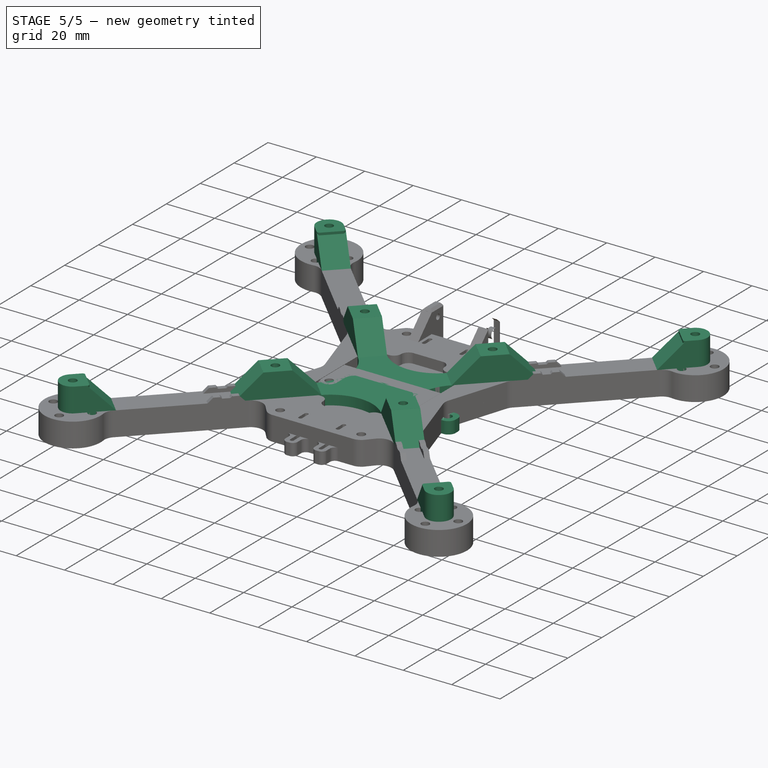
[diagram: stage 5 of 5 — iso view after this stage's code; geometry added in this stage tinted green]
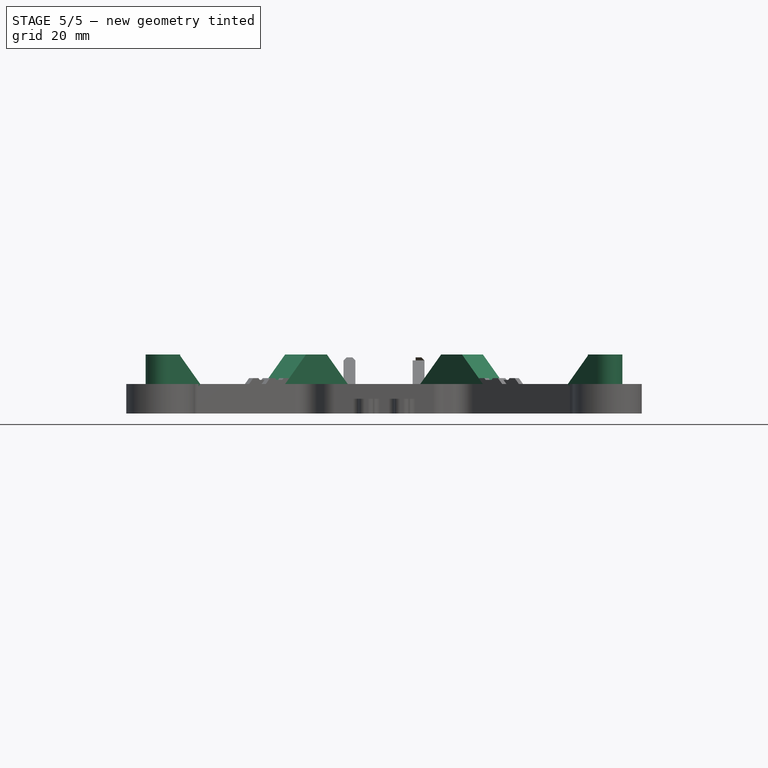
[diagram: stage 5 of 5 — front view after this stage's code; geometry added in this stage tinted green]
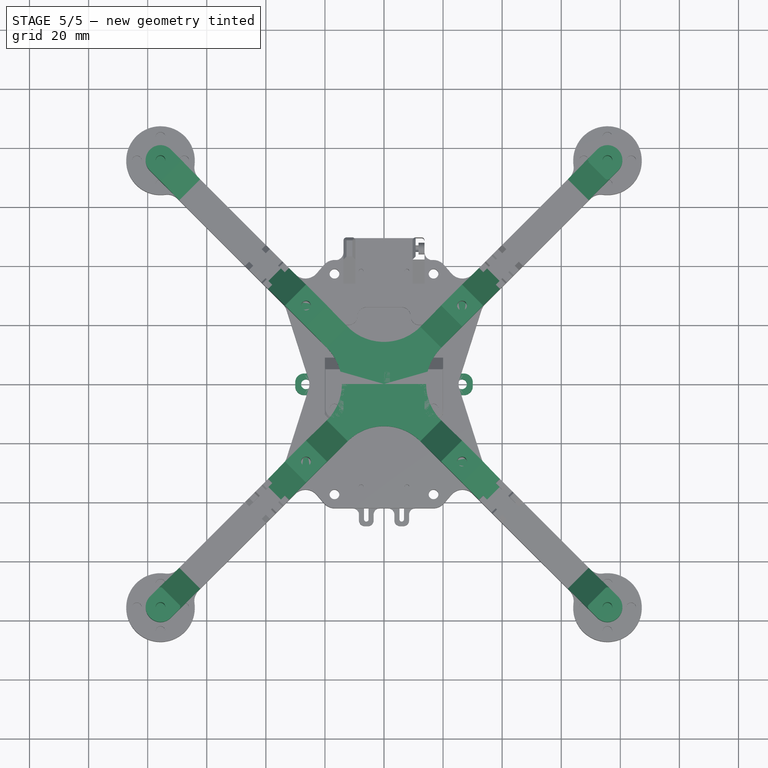
[diagram: stage 5 of 5 — top view after this stage's code; geometry added in this stage tinted green]
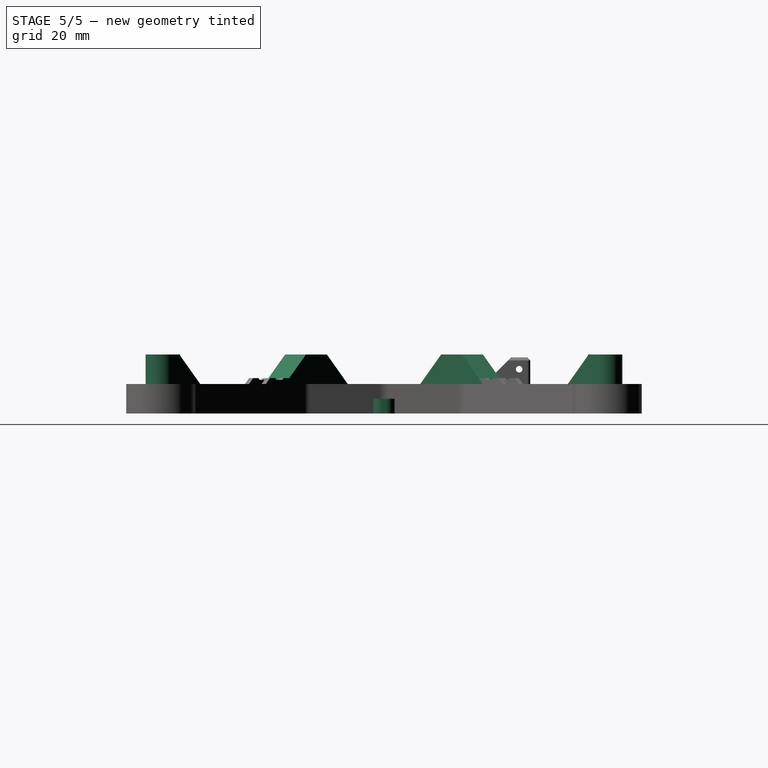
[diagram: stage 5 of 5 — right view after this stage's code; geometry added in this stage tinted green]
FEATURE [Sketcher::SketchObject] Sketch009
  ArcFitTolerance = 0
  AttachmentSupport = -> [XY_Plane002]
  FullyConstrained = true
  MakeInternals = false
  MapMode = 5
  expr: Constraints[18] = Sketch.Constraints.ArmWidth
  expr: Constraints[1] = Sketch.Constraints.ArmAngle
  expr: Constraints[26] = Sketch.Constraints.ArmWidth / 2
  expr: Constraints[2] = Sketch.Constraints.WheelbaseRadius
  sketch-geometry (10):
    g0: LineSegment [constr] StartX=0 StartY=0 StartZ=0 EndX=-75.6604 EndY=75.6604 EndZ=0
    g1: LineSegment StartX=0 StartY=7.07107 StartZ=0 EndX=-72.1249 EndY=79.196 EndZ=0
    g2: LineSegment StartX=0 StartY=7.07107 StartZ=0 EndX=0 EndY=0 EndZ=0
    g3: LineSegment StartX=0 StartY=0 StartZ=0 EndX=-7.07107 EndY=0 EndZ=0
    g4: LineSegment StartX=-7.07107 StartY=0 StartZ=0 EndX=-79.196 EndY=72.1249 EndZ=0
    g5: LineSegment [constr] StartX=-79.196 StartY=72.1249 StartZ=0 EndX=-75.6604 EndY=75.6604 EndZ=0
    g6: LineSegment [constr] StartX=-72.1249 StartY=79.196 StartZ=0 EndX=-75.6604 EndY=75.6604 EndZ=0
    g7: LineSegment StartX=-79.196 StartY=72.1249 StartZ=0 EndX=-82.7315 EndY=75.6604 EndZ=0
    g8: LineSegment StartX=-82.7315 StartY=75.6604 StartZ=0 EndX=-75.6604 EndY=82.7315 EndZ=0
    g9: LineSegment StartX=-75.6604 StartY=82.7315 StartZ=0 EndX=-72.1249 EndY=79.196 EndZ=0
  constraints (27):
    c: Coincident(g0,g-1)
    c: Angle(g-2,g0) = 0.785398
    c: Distance(g0) = 107
    c: PointOnObject(g1,g-2)
    c: Coincident(g2,g1)
    c: Coincident(g2,g0)
    c: Coincident(g3,g0)
    c: PointOnObject(g3,g-1)
    c: Coincident(g4,g3)
    c: Coincident(g5,g4)
    c: Coincident(g5,g0)
    c: Coincident(g6,g1)
    c: Coincident(g6,g0)
    c: Perpendicular(g0,g6)
    c: Perpendicular(g0,g5)
    c: Parallel(g4,g0)
    c: Parallel(g0,g1)
    c: Equal(g5,g6)
    c: Distance(g4,g1) = 10
    c: Coincident(g7,g4)
    c: Coincident(g8,g7)
    c: Coincident(g9,g8)
    c: Coincident(g9,g1)
    c: Parallel(g9,g1)
    c: Parallel(g7,g4)
    c: Equal(g7,g9)
    c: Distance(g9) = 5
FEATURE [PartDesign::Pad] Pad003  label="Leg"
  Direction = (0,0,1)
  Length = 10
  Length2 = 10
  Profile = -> Sketch009
  ReferenceAxis = -> Sketch009 [N_Axis]
  Suppressed = false
  Type = 0
FEATURE [Sketcher::SketchObject] Sketch010
  ArcFitTolerance = 0
  AttachmentSupport = -> [XY_Plane002]
  FullyConstrained = true
  MakeInternals = false
  MapMode = 5
  expr: Constraints[1] = Sketch.Constraints.ArmAngle
  expr: Constraints[20] = Sketch.Constraints.ArmWidth
  expr: Constraints[2] = Sketch.Constraints.WheelbaseRadius
  expr: Constraints[4] = Sketch.Constraints.LegScrewRadius
  sketch-geometry (12):
    g0: LineSegment [constr] StartX=0 StartY=0 StartZ=0 EndX=-75.6604 EndY=75.6604 EndZ=0
    g1: GeomPoint [constr] X=-26.4104 Y=26.4104 Z=0
    g2: Circle [constr] CenterX=-75.6604 CenterY=75.6604 CenterZ=0 NormalX=0 NormalY=0 NormalZ=1 AngleXU=0 Radius=7.07107
    g3: Circle [constr] CenterX=-26.4104 CenterY=26.4104 CenterZ=0 NormalX=0 NormalY=0 NormalZ=1 AngleXU=0 Radius=7.07107
    g4: LineSegment StartX=-75.6604 StartY=82.7315 StartZ=0 EndX=-68.5894 EndY=75.6604 EndZ=0
    g5: LineSegment StartX=-68.5894 StartY=75.6604 StartZ=0 EndX=-75.6604 EndY=68.5894 EndZ=0
    g6: LineSegment StartX=-75.6604 StartY=68.5894 StartZ=0 EndX=-82.7315 EndY=75.6604 EndZ=0
    g7: LineSegment StartX=-82.7315 StartY=75.6604 StartZ=0 EndX=-75.6604 EndY=82.7315 EndZ=0
    g8: LineSegment StartX=-33.4815 StartY=26.4104 StartZ=0 EndX=-26.4104 EndY=33.4815 EndZ=0
    g9: LineSegment StartX=-26.4104 StartY=33.4815 StartZ=0 EndX=-19.3394 EndY=26.4104 EndZ=0
    g10: LineSegment StartX=-19.3394 StartY=26.4104 StartZ=0 EndX=-26.4104 EndY=19.3394 EndZ=0
    g11: LineSegment StartX=-26.4104 StartY=19.3394 StartZ=0 EndX=-33.4815 EndY=26.4104 EndZ=0
  constraints (33):
    c: Coincident(g0,g-1)
    c: Angle(g-2,g0) = 0.785398
    c: Distance(g0) = 107
    c: PointOnObject(g1,g0)
    c: Distance(g1,g0) = 37.35
    c: Coincident(g2,g0)
    c: Coincident(g3,g1)
    c: Equal(g3,g2)
    c: PointOnObject(g4,g2)
    c: PointOnObject(g4,g2)
    c: Coincident(g5,g4)
    c: PointOnObject(g5,g2)
    c: Coincident(g6,g5)
    c: PointOnObject(g6,g2)
    c: Coincident(g7,g6)
    c: Coincident(g7,g4)
    c: Equal(g4,g7)
    c: Equal(g7,g6)
    c: Equal(g6,g5)
    c: Perpendicular(g0,g5)
    c: Distance(g4) = 10
    c: PointOnObject(g8,g3)
    c: PointOnObject(g8,g3)
    c: Coincident(g8,g9)
    c: PointOnObject(g9,g3)
    c: Coincident(g9,g10)
    c: PointOnObject(g10,g3)
    c: Coincident(g10,g11)
    c: Coincident(g11,g8)
    c: Equal(g8,g11)
    c: Equal(g11,g10)
    c: Equal(g10,g9)
    c: Perpendicular(g0,g8)
FEATURE [PartDesign::Pad] Pad004  label="Verticals"
  BaseFeature = -> Pad003
  Direction = (0,0,1)
  Length = 20
  Length2 = 10
  Profile = -> Sketch010
  ReferenceAxis = -> Sketch010 [N_Axis]
  Suppressed = false
  Type = 0
FEATURE [PartDesign::Chamfer] Chamfer  label="EndChamfer"
  Angle = 45
  Base = -> Pad004 [Edge38]
  BaseFeature = -> Pad004
  ChamferType = 0
  FlipDirection = false
  Size = 9
  Size2 = 1
  SupportTransform = false
  Suppressed = false
  UseAllEdges = false
FEATURE [PartDesign::Fillet] Fillet014  label="EndFillet"
  Base = -> Chamfer [Edge31,Edge9]
  BaseFeature = -> Chamfer
  Radius = 1
  SupportTransform = false
  Suppressed = false
  UseAllEdges = false
FEATURE [PartDesign::Fillet] Fillet018  label="OuterFillet"
  Base = -> Fillet014 [Edge3,Edge17]
  BaseFeature = -> Fillet014
  Radius = 4.9
  SupportTransform = false
  Suppressed = false
  UseAllEdges = false
FEATURE [PartDesign::Chamfer] Chamfer001  label="InnerChamfer"
  Angle = 45
  Base = -> Fillet018 [Edge50,Edge79]
  BaseFeature = -> Fillet018
  ChamferType = 0
  FlipDirection = false
  Size = 9.99
  Size2 = 1
  SupportTransform = false
  Suppressed = false
  UseAllEdges = false
FEATURE [PartDesign::Pocket] Pocket006  label="ScrewHoles"
  BaseFeature = -> Chamfer001
  Direction = (0,0,-1)
  Length = 5
  Length2 = 5
  Profile = -> Sketch011
  ReferenceAxis = -> Sketch011 [N_Axis]
  Reversed = true
  Suppressed = false
  Type = 1
FEATURE [PartDesign::Pocket] Pocket007  label="BottomScrewCap"
  BaseFeature = -> Pocket006
  Direction = (0,0,-1)
  Length = 3
  Length2 = 5
  Profile = -> Sketch013
  ReferenceAxis = -> Sketch013 [N_Axis]
  Reversed = true
  Suppressed = false
  Type = 0
FEATURE [PartDesign::Pad] Pad006  label="BottomSacrificial"
  BaseFeature = -> Pocket007
  Direction = (0,0,1)
  Length = 0.2
  Length2 = 10
  Profile = -> Sketch014
  ReferenceAxis = -> Sketch014 [N_Axis]
  Suppressed = false
  Type = 0
FEATURE [PartDesign::PolarPattern] PolarPattern001
  Angle = 360
  Axis = -> Sketch009 [N_Axis]
  BaseFeature = -> Pad006
  Mode = 0
  Occurrences = 4
  Offset = 120
  Originals = -> [Pad003,Pad004,Chamfer,Fillet014,Fillet018,Chamfer001,Pocket006,Pocket007,Pad006]
  Suppressed = false
  TransformMode = 0
FEATURE [PartDesign::Fillet] Fillet015  label="CenterFillet"
  Base = -> PolarPattern001 [Edge146,Edge138,Edge109,Edge46]
  BaseFeature = -> PolarPattern001
  Radius = 17.36
  SupportTransform = false
  Suppressed = false
  UseAllEdges = false
FEATURE [Sketcher::SketchObject] Sketch022
  ArcFitTolerance = 1e-06
  AttachmentSupport = -> [XY_Plane004]
  FullyConstrained = true
  MakeInternals = false
  MapMode = 5
  expr: Constraints[3] = <<Base>>.Constraints.ScrewHoleDiameter
  expr: Constraints[4] = <<Base>>.Constraints.ArmScrewY
  expr: Constraints[5] = <<Base>>.Constraints.ArmScrewY
  sketch-geometry (10):
    g0: Circle CenterX=-26.4104 CenterY=0 CenterZ=0 NormalX=0 NormalY=0 NormalZ=1 AngleXU=0 Radius=1.65
    g1: Circle CenterX=26.4104 CenterY=0 CenterZ=0 NormalX=0 NormalY=0 NormalZ=1 AngleXU=0 Radius=1.65
    g2: LineSegment StartX=-30.0604 StartY=3.65 StartZ=0 EndX=-30.0604 EndY=-3.65 EndZ=0
    g3: LineSegment StartX=-30.0604 StartY=-3.65 StartZ=0 EndX=30.0604 EndY=-3.65 EndZ=0
    g4: LineSegment StartX=30.0604 StartY=-3.65 StartZ=0 EndX=30.0604 EndY=3.65 EndZ=0
    g5: LineSegment StartX=30.0604 StartY=3.65 StartZ=0 EndX=-30.0604 EndY=3.65 EndZ=0
    g6: LineSegment [constr] StartX=-26.4104 StartY=1.65 StartZ=0 EndX=-26.4104 EndY=3.65 EndZ=0
    g7: LineSegment [constr] StartX=-28.0604 StartY=0 StartZ=0 EndX=-30.0604 EndY=0 EndZ=0
    g8: LineSegment [constr] StartX=28.0604 StartY=0 StartZ=0 EndX=30.0604 EndY=0 EndZ=0
    g9: LineSegment [constr] StartX=-26.4104 StartY=-3.65 StartZ=0 EndX=-26.4104 EndY=-1.65 EndZ=0
  constraints (33):
    c: PointOnObject(g0,g-1)
    c: PointOnObject(g1,g-1)
    c: Equal(g0,g1)
    c: Diameter(g0) = 3.3
    c: DistanceX(g0,g-1) = 26.4104
    c: DistanceX(g-1,g1) = 26.4104
    c: Coincident(g2,g3)
    c: Coincident(g3,g4)
    c: Coincident(g4,g5)
    c: Coincident(g5,g2)
    c: Vertical(g2)
    c: Vertical(g4)
    c: Horizontal(g3)
    c: Horizontal(g5)
    c: PointOnObject(g6,g0)
    c: PointOnObject(g6,g5)
    c: Vertical(g6)
    c: PointOnObject(g7,g0)
    c: Symmetric(g2,g2,g7)
    c: Horizontal(g7)
    c: Perpendicular(g0,g7)
    c: Perpendicular(g0,g6)
    c: Equal(g7,g6)
    c: DistanceX(g7,g7) = 2
    c: PointOnObject(g8,g1)
    c: PointOnObject(g8,g4)
    c: Horizontal(g8)
    c: Perpendicular(g1,g8)
    c: Equal(g8,g7)
    c: PointOnObject(g9,g3)
    c: PointOnObject(g9,g0)
    c: Vertical(g9)
    c: Perpendicular(g0,g9)
FEATURE [PartDesign::Pad] Pad010
  Direction = (0,0,1)
  Length = 5
  Length2 = 10
  Profile = -> Sketch022
  ReferenceAxis = -> Sketch022 [N_Axis]
  Suppressed = false
  Type = 0
FEATURE [Sketcher::SketchObject] Sketch023
  ArcFitTolerance = 1e-06
  AttachmentSupport = -> [XY_Plane004]
  ExternalGeometry = -> [Pad010]
  FullyConstrained = true
  MakeInternals = false
  MapMode = 5
  sketch-geometry (6):
    g0: LineSegment StartX=-11 StartY=-3.65 StartZ=0 EndX=11 EndY=-3.65 EndZ=0
    g1: LineSegment StartX=11 StartY=-3.65 StartZ=0 EndX=11 EndY=3.65 EndZ=0
    g2: LineSegment StartX=11 StartY=3.65 StartZ=0 EndX=-11 EndY=3.65 EndZ=0
    g3: LineSegment StartX=-11 StartY=3.65 StartZ=0 EndX=-11 EndY=-3.65 EndZ=0
    g4: LineSegment [constr] StartX=0 StartY=0 StartZ=0 EndX=-11 EndY=-3.65 EndZ=0
    g5: LineSegment [constr] StartX=0 StartY=0 StartZ=0 EndX=11 EndY=3.65 EndZ=0
  constraints (16):
    c: Coincident(g0,g1)
    c: Coincident(g1,g2)
    c: Coincident(g2,g3)
    c: Coincident(g3,g0)
    c: Horizontal(g0)
    c: Horizontal(g2)
    c: Vertical(g1)
    c: Vertical(g3)
    c: PointOnObject(g0,g-3)
    c: PointOnObject(g1,g-4)
    c: Coincident(g4,g-1)
    c: Coincident(g4,g0)
    c: Coincident(g5,g4)
    c: Coincident(g5,g1)
    c: Equal(g4,g5)
    c: DistanceX(g0,g0) = 22
FEATURE [PartDesign::Pocket] Pocket012
  BaseFeature = -> Pad010
  Direction = (0,0,-1)
  Length = 2
  Length2 = 5
  Profile = -> Sketch023
  ReferenceAxis = -> Sketch023 [N_Axis]
  Reversed = true
  Suppressed = false
  Type = 0
FEATURE [PartDesign::Fillet] Fillet022
  Base = -> Pocket012 [Edge1,Edge2,Edge11,Edge17,Edge8,Edge13,Edge6,Edge15]
  BaseFeature = -> Pocket012
  Radius = 3
  SupportTransform = false
  Suppressed = false
  UseAllEdges = false
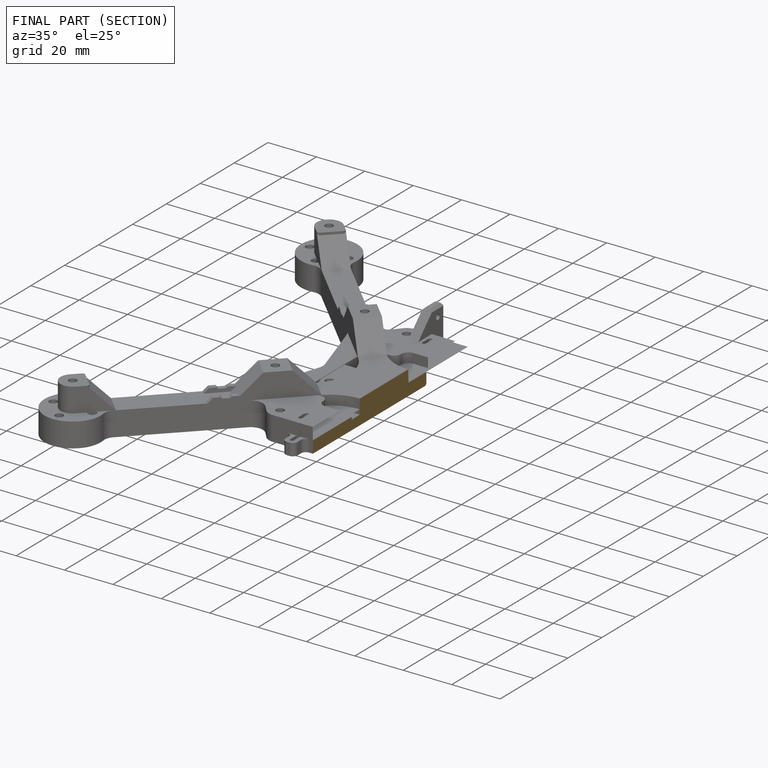
[diagram: finished part — half-section view (interior)]
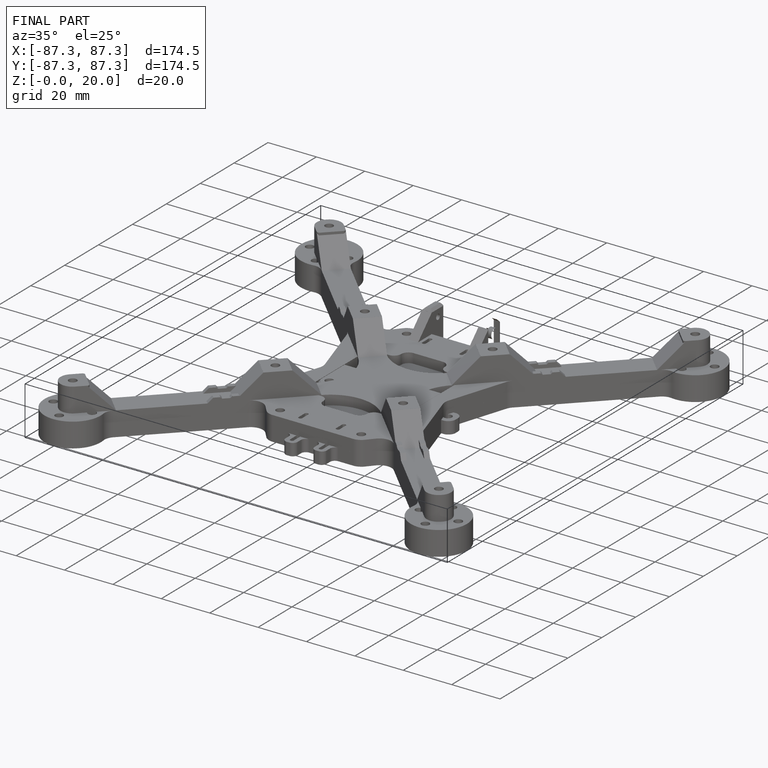
[diagram: finished part — iso view with bounding-box wireframe]
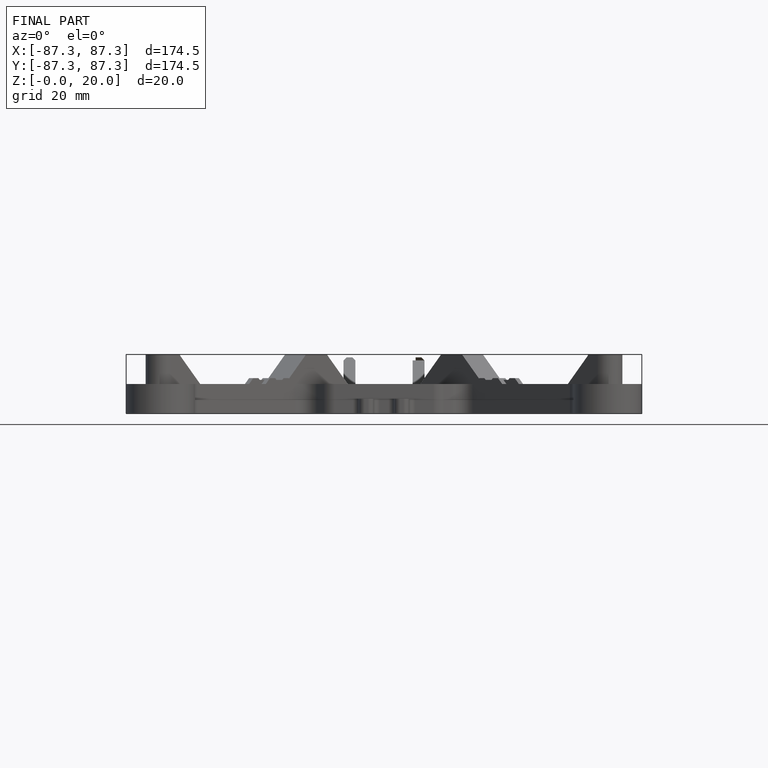
[diagram: finished part — front view with bounding-box wireframe]
